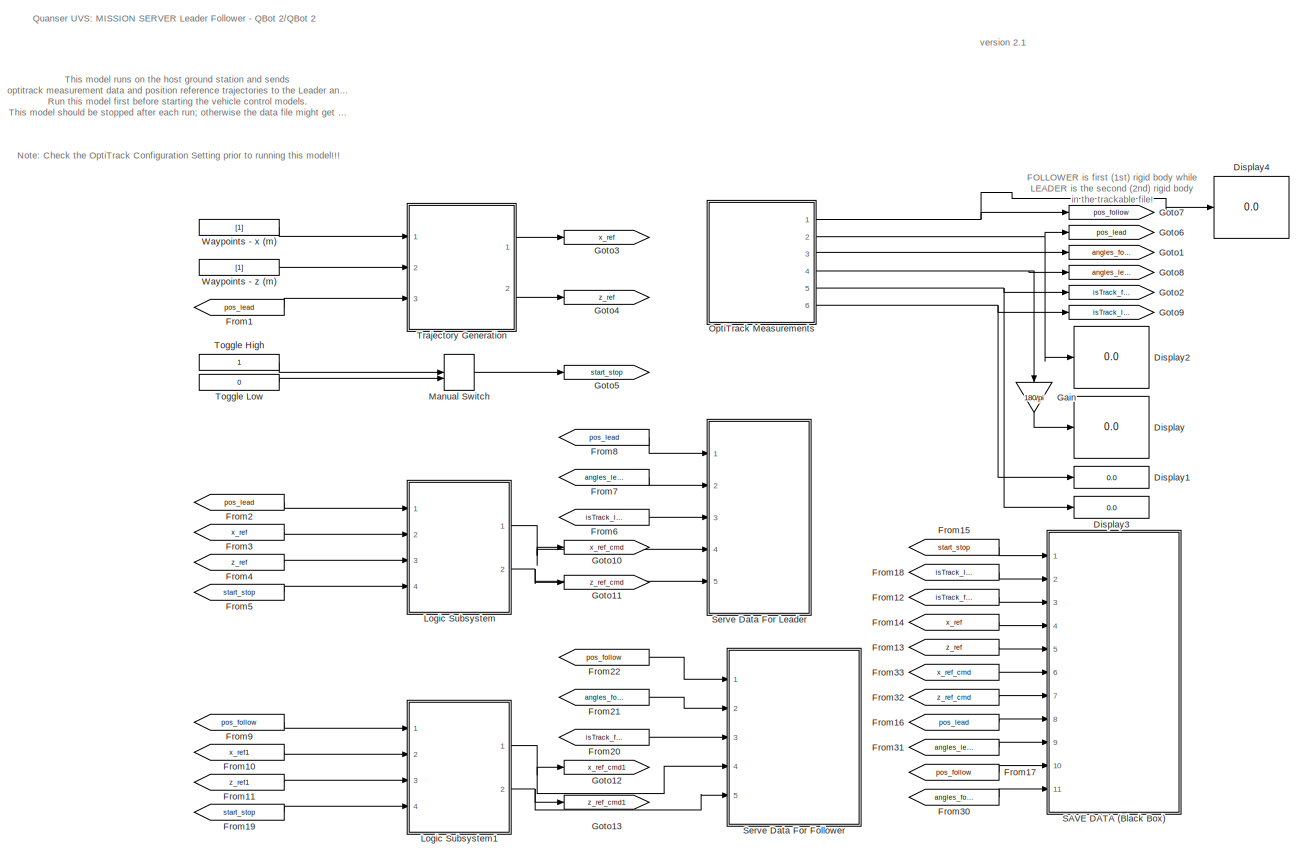
[diagram: root canvas - part 1/2, most of the canvas]
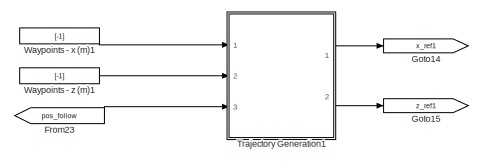
[diagram: root canvas - part 2/2, bottom center region]
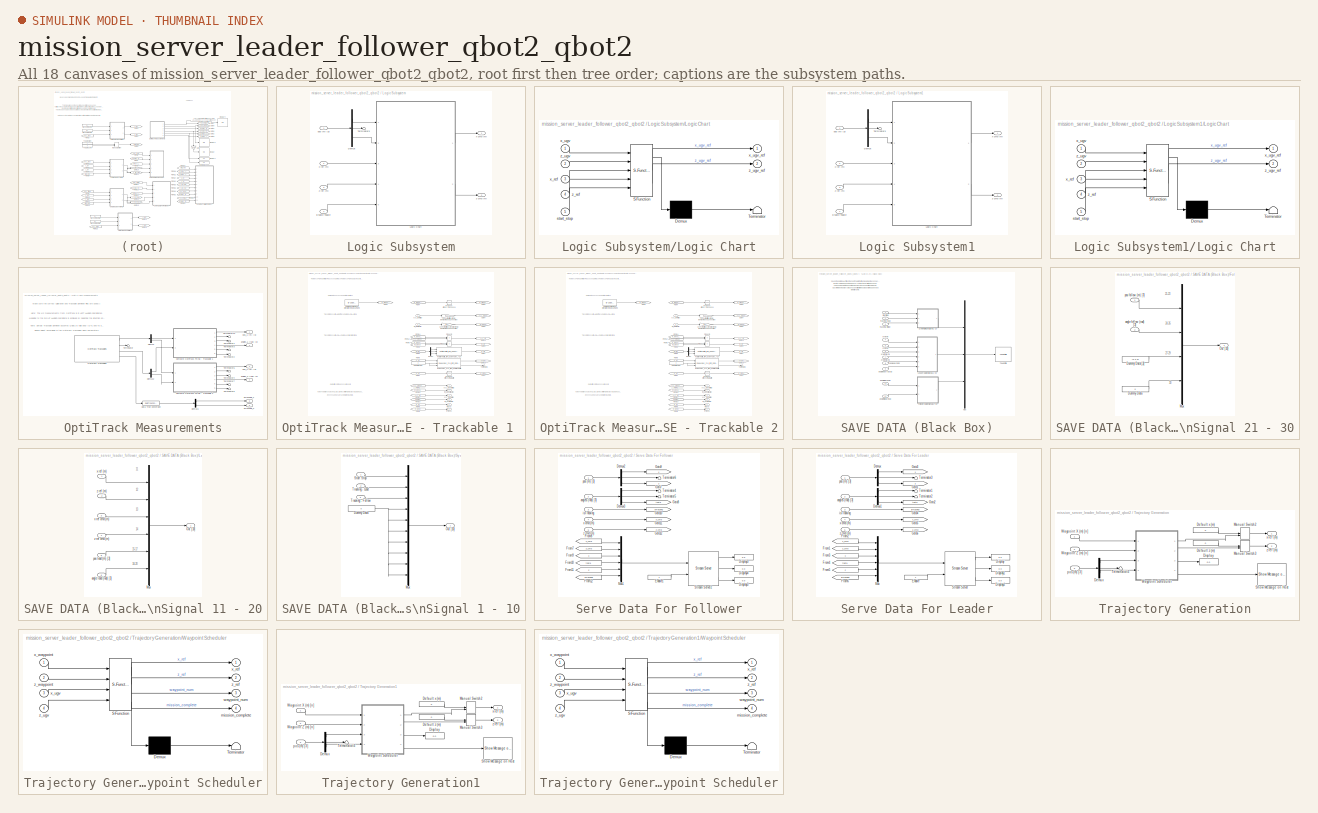
[diagram: thumbnail index - all 18 canvases of the model, root first then tree order]
MODEL mission_server_leader_follower_qbot2_qbot2
KIND model
BLOCK [Display] Display
  Decimation = 100
  Ports = [1]
  SID = 119
BLOCK [Display] Display1
  Decimation = 100
  Ports = [1]
  SID = 121
BLOCK [Display] Display2
  Decimation = 100
  Ports = [1]
  SID = 122
BLOCK [Display] Display3
  Decimation = 100
  Ports = [1]
  SID = 159
BLOCK [Display] Display4
  Decimation = 100
  Ports = [1]
  SID = 332
BLOCK [From] From1
  GotoTag = pos_lead
  SID = 62
BLOCK [From] From10
  GotoTag = x_ref1
  SID = 419
BLOCK [From] From11
  GotoTag = z_ref1
  SID = 420
BLOCK [From] From12
  GotoTag = isTrack_follow
  SID = 269
BLOCK [From] From13
  GotoTag = z_ref
  SID = 270
BLOCK [From] From14
  GotoTag = x_ref
  SID = 271
BLOCK [From] From15
  GotoTag = start_stop
  SID = 276
BLOCK [From] From16
  GotoTag = pos_lead
  SID = 277
BLOCK [From] From17
  GotoTag = pos_follow
  SID = 278
BLOCK [From] From18
  GotoTag = isTrack_lead
  SID = 279
BLOCK [From] From19
  GotoTag = start_stop
  SID = 421
BLOCK [From] From2
  GotoTag = pos_lead
  SID = 77
BLOCK [From] From20
  GotoTag = isTrack_follow
  SID = 422
BLOCK [From] From21
  GotoTag = angles_follow
  SID = 423
BLOCK [From] From22
  GotoTag = pos_follow
  SID = 424
BLOCK [From] From23
  GotoTag = pos_follow
  SID = 437
BLOCK [From] From3
  GotoTag = x_ref
  SID = 78
BLOCK [From] From30
  GotoTag = angles_follow
  SID = 272
BLOCK [From] From31
  GotoTag = angles_lead
  SID = 273
BLOCK [From] From32
  GotoTag = z_ref_cmd
  SID = 274
BLOCK [From] From33
  GotoTag = x_ref_cmd
  SID = 275
BLOCK [From] From4
  GotoTag = z_ref
  SID = 79
BLOCK [From] From5
  GotoTag = start_stop
  SID = 80
BLOCK [From] From6
  GotoTag = isTrack_lead
  SID = 90
BLOCK [From] From7
  GotoTag = angles_lead
  SID = 91
BLOCK [From] From8
  GotoTag = pos_lead
  SID = 92
BLOCK [From] From9
  GotoTag = pos_follow
  SID = 418
BLOCK [Gain] Gain
  Gain = 180/pi
  OutDataTypeStr = Inherit: Inherit via internal rule
  ParamDataTypeStr = Inherit: Inherit via internal rule
  SID = 123
  SaturateOnIntegerOverflow = off
BLOCK [Goto] Goto1
  GotoTag = angles_follow
  SID = 46
BLOCK [Goto] Goto10
  GotoTag = x_ref_cmd
  SID = 328
BLOCK [Goto] Goto11
  GotoTag = z_ref_cmd
  SID = 329
BLOCK [Goto] Goto12
  GotoTag = x_ref_cmd1
  SID = 425
BLOCK [Goto] Goto13
  GotoTag = z_ref_cmd1
  SID = 426
BLOCK [Goto] Goto14
  GotoTag = x_ref1
  SID = 438
BLOCK [Goto] Goto15
  GotoTag = z_ref1
  SID = 439
BLOCK [Goto] Goto2
  GotoTag = isTrack_follow
  SID = 47
BLOCK [Goto] Goto3
  GotoTag = x_ref
  SID = 75
BLOCK [Goto] Goto4
  GotoTag = z_ref
  SID = 76
BLOCK [Goto] Goto5
  GotoTag = start_stop
  SID = 118
BLOCK [Goto] Goto6
  GotoTag = pos_lead
  SID = 124
BLOCK [Goto] Goto7
  GotoTag = pos_follow
  SID = 42
BLOCK [Goto] Goto8
  GotoTag = angles_lead
  SID = 125
BLOCK [Goto] Goto9
  GotoTag = isTrack_lead
  SID = 126
BLOCK [SubSystem] Logic Subsystem
  Ports = [4, 2]
  RequestExecContextInheritance = off
  SID = 65
BLOCK [Demux] Logic Subsystem/Demux
  DisplayOption = bar
  Outputs = 3
  Ports = [1, 3]
  SID = 69
BLOCK [Inport] Logic Subsystem/Enable Toggle
  IconDisplay = Port number
  Port = 4
  SID = 73
BLOCK [SubSystem] Logic Subsystem/Logic Chart
  ErrorFcn = Stateflow.Translate.translate
  PermitHierarchicalResolution = ExplicitOnly
  Ports = [5, 2]
  RequestExecContextInheritance = off
  SFBlockType = Chart
  SID = 68
  TreatAsAtomicUnit = on
BLOCK [Demux] Logic Subsystem/Logic Chart/ Demux 
  Outputs = 1
  Ports = [1, 1]
  SID = 68::333
BLOCK [S-Function] Logic Subsystem/Logic Chart/ SFunction 
  EnableBusSupport = on
  FunctionName = sf_sfun
  PortCounts = [5 3]
  Ports = [5, 3]
  SID = 68::332
  Tag = Stateflow S-Function mission_server_leader_follower_qbot2_qbot2 4
BLOCK [Terminator] Logic Subsystem/Logic Chart/ Terminator 
  SID = 68::334
BLOCK [Inport] Logic Subsystem/Logic Chart/start_stop
  IconDisplay = Port number
  Port = 5
  SID = 68::38
BLOCK [Inport] Logic Subsystem/Logic Chart/x_ref
  IconDisplay = Port number
  Port = 3
  SID = 68::31
BLOCK [Inport] Logic Subsystem/Logic Chart/x_ugv
  IconDisplay = Port number
  SID = 68::29
BLOCK [Outport] Logic Subsystem/Logic Chart/x_ugv_ref
  IconDisplay = Port number
  SID = 68::36
BLOCK [Inport] Logic Subsystem/Logic Chart/z_ref
  IconDisplay = Port number
  Port = 4
  SID = 68::32
BLOCK [Inport] Logic Subsystem/Logic Chart/z_ugv
  IconDisplay = Port number
  Port = 2
  SID = 68::30
BLOCK [Outport] Logic Subsystem/Logic Chart/z_ugv_ref
  IconDisplay = Port number
  Port = 2
  SID = 68::37
BLOCK [Terminator] Logic Subsystem/Terminator3
  SID = 70
BLOCK [Inport] Logic Subsystem/pos (m) [3]
  IconDisplay = Port number
  SID = 66
BLOCK [Outport] Logic Subsystem/x cmd (m)
  IconDisplay = Port number
  SID = 67
BLOCK [Inport] Logic Subsystem/x ref (m)
  IconDisplay = Port number
  Port = 2
  SID = 71
BLOCK [Outport] Logic Subsystem/z cmd (m)
  IconDisplay = Port number
  Port = 2
  SID = 74
BLOCK [Inport] Logic Subsystem/z ref (m)
  IconDisplay = Port number
  Port = 3
  SID = 72
BLOCK [SubSystem] Logic Subsystem1
  Ports = [4, 2]
  RequestExecContextInheritance = off
  SID = 427
BLOCK [Demux] Logic Subsystem1/Demux
  DisplayOption = bar
  Outputs = 3
  Ports = [1, 3]
  SID = 432
BLOCK [Inport] Logic Subsystem1/Enable Toggle
  IconDisplay = Port number
  Port = 4
  SID = 431
BLOCK [SubSystem] Logic Subsystem1/Logic Chart
  ErrorFcn = Stateflow.Translate.translate
  PermitHierarchicalResolution = ExplicitOnly
  Ports = [5, 2]
  RequestExecContextInheritance = off
  SFBlockType = Chart
  SID = 433
  TreatAsAtomicUnit = on
BLOCK [Demux] Logic Subsystem1/Logic Chart/ Demux 
  Outputs = 1
  Ports = [1, 1]
  SID = 433::333
BLOCK [S-Function] Logic Subsystem1/Logic Chart/ SFunction 
  EnableBusSupport = on
  FunctionName = sf_sfun
  PortCounts = [5 3]
  Ports = [5, 3]
  SID = 433::332
  Tag = Stateflow S-Function mission_server_leader_follower_qbot2_qbot2 1
BLOCK [Terminator] Logic Subsystem1/Logic Chart/ Terminator 
  SID = 433::334
BLOCK [Inport] Logic Subsystem1/Logic Chart/start_stop
  IconDisplay = Port number
  Port = 5
  SID = 433::38
BLOCK [Inport] Logic Subsystem1/Logic Chart/x_ref
  IconDisplay = Port number
  Port = 3
  SID = 433::31
BLOCK [Inport] Logic Subsystem1/Logic Chart/x_ugv
  IconDisplay = Port number
  SID = 433::29
BLOCK [Outport] Logic Subsystem1/Logic Chart/x_ugv_ref
  IconDisplay = Port number
  SID = 433::36
BLOCK [Inport] Logic Subsystem1/Logic Chart/z_ref
  IconDisplay = Port number
  Port = 4
  SID = 433::32
BLOCK [Inport] Logic Subsystem1/Logic Chart/z_ugv
  IconDisplay = Port number
  Port = 2
  SID = 433::30
BLOCK [Outport] Logic Subsystem1/Logic Chart/z_ugv_ref
  IconDisplay = Port number
  Port = 2
  SID = 433::37
BLOCK [Terminator] Logic Subsystem1/Terminator3
  SID = 434
BLOCK [Inport] Logic Subsystem1/pos (m) [3]
  IconDisplay = Port number
  SID = 428
BLOCK [Outport] Logic Subsystem1/x cmd (m)
  IconDisplay = Port number
  SID = 435
BLOCK [Inport] Logic Subsystem1/x ref (m)
  IconDisplay = Port number
  Port = 2
  SID = 429
BLOCK [Outport] Logic Subsystem1/z cmd (m)
  IconDisplay = Port number
  Port = 2
  SID = 436
BLOCK [Inport] Logic Subsystem1/z ref (m)
  IconDisplay = Port number
  Port = 3
  SID = 430
BLOCK [ManualSwitch] Manual Switch
  CurrentSetting = 0
  SID = 115
BLOCK [SubSystem] OptiTrack Measurements
  Ports = [0, 6]
  RequestExecContextInheritance = off
  SID = 13
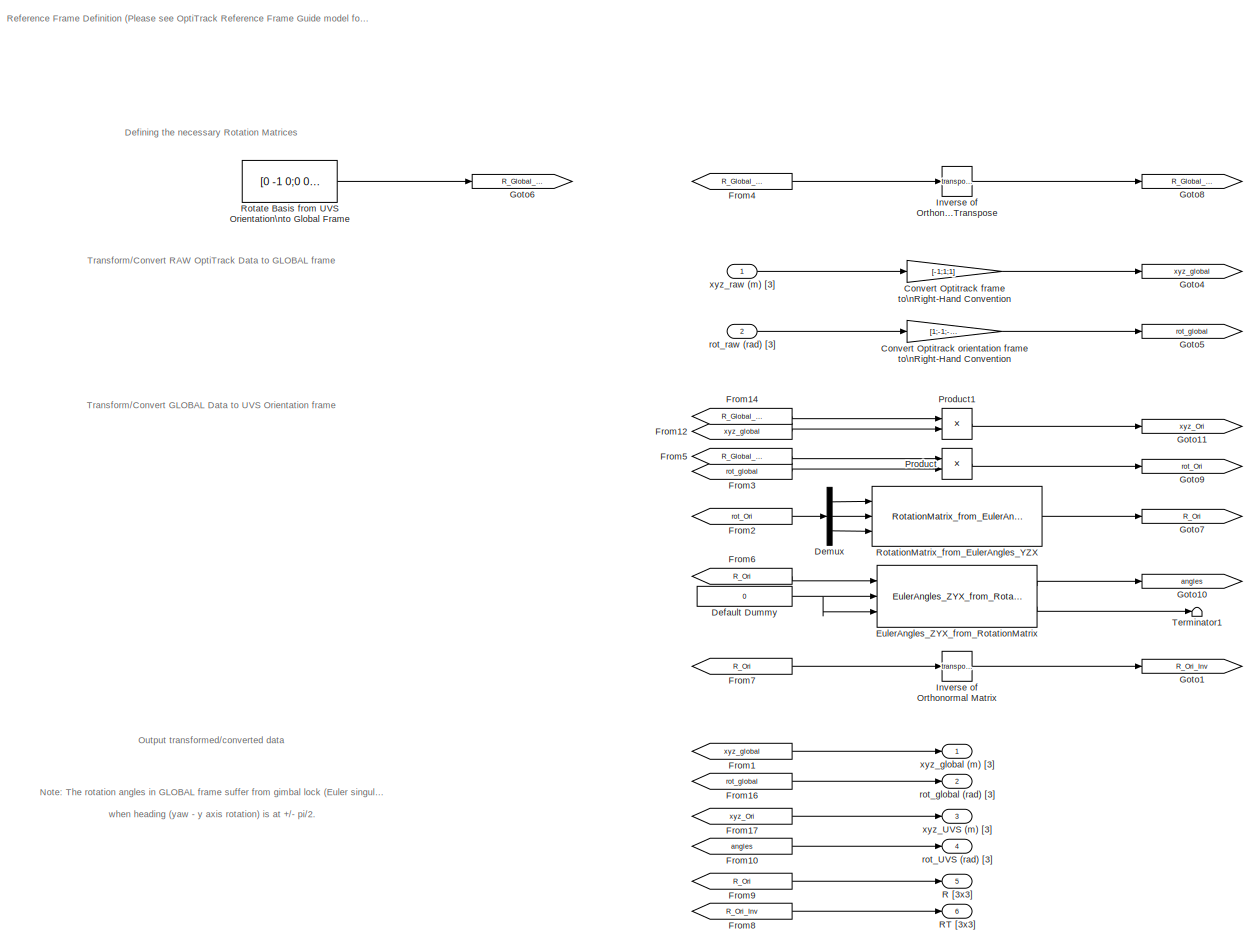
[diagram: OptiTrack Measurements/Compute OptiTrack POSE - Trackable 1  - part 1/1, most of the canvas]
BLOCK [SubSystem] OptiTrack Measurements/Compute OptiTrack POSE - Trackable 1 
  Ports = [2, 6]
  RequestExecContextInheritance = off
  SID = 161
BLOCK [Gain] OptiTrack Measurements/Compute OptiTrack POSE - Trackable 1 /Convert Optitrack frame to\nRight-Hand Convention
  Gain = [-1;1;1]
  OutDataTypeStr = Inherit: Inherit via internal rule
  ParamDataTypeStr = Inherit: Inherit via internal rule
  SID = 164
  SaturateOnIntegerOverflow = off
BLOCK [Gain] OptiTrack Measurements/Compute OptiTrack POSE - Trackable 1 /Convert Optitrack orientation frame to\nRight-Hand Convention
  Gain = [1;-1;-1]
  OutDataTypeStr = Inherit: Inherit via internal rule
  ParamDataTypeStr = Inherit: Inherit via internal rule
  SID = 165
  SaturateOnIntegerOverflow = off
BLOCK [Constant] OptiTrack Measurements/Compute OptiTrack POSE - Trackable 1 /Default Dummy
  SID = 166
  Value = 0
BLOCK [Demux] OptiTrack Measurements/Compute OptiTrack POSE - Trackable 1 /Demux
  DisplayOption = bar
  Outputs = 3
  Ports = [1, 3]
  SID = 167
BLOCK [Reference] OptiTrack Measurements/Compute OptiTrack POSE - Trackable 1 /EulerAngles_ZYX_from_RotationMatrix  REF=Orientation_Library/EulerAngles_ZYX_from_RotationMatrix
  Ports = [3, 2]
  SID = 168
  SourceBlock = Orientation_Library/EulerAngles_ZYX_from_RotationMatrix
  SourceType = SubSystem
BLOCK [From] OptiTrack Measurements/Compute OptiTrack POSE - Trackable 1 /From1
  GotoTag = xyz_global
  SID = 169
BLOCK [From] OptiTrack Measurements/Compute OptiTrack POSE - Trackable 1 /From10
  GotoTag = angles
  SID = 170
BLOCK [From] OptiTrack Measurements/Compute OptiTrack POSE - Trackable 1 /From12
  GotoTag = xyz_global
  SID = 171
BLOCK [From] OptiTrack Measurements/Compute OptiTrack POSE - Trackable 1 /From14
  GotoTag = R_Global_Ori_Inv
  SID = 172
BLOCK [From] OptiTrack Measurements/Compute OptiTrack POSE - Trackable 1 /From16
  GotoTag = rot_global
  SID = 173
BLOCK [From] OptiTrack Measurements/Compute OptiTrack POSE - Trackable 1 /From17
  GotoTag = xyz_Ori
  SID = 174
BLOCK [From] OptiTrack Measurements/Compute OptiTrack POSE - Trackable 1 /From2
  GotoTag = rot_Ori
  SID = 175
BLOCK [From] OptiTrack Measurements/Compute OptiTrack POSE - Trackable 1 /From3
  GotoTag = rot_global
  SID = 176
BLOCK [From] OptiTrack Measurements/Compute OptiTrack POSE - Trackable 1 /From4
  GotoTag = R_Global_Ori
  SID = 177
BLOCK [From] OptiTrack Measurements/Compute OptiTrack POSE - Trackable 1 /From5
  GotoTag = R_Global_Ori_Inv
  SID = 178
BLOCK [From] OptiTrack Measurements/Compute OptiTrack POSE - Trackable 1 /From6
  GotoTag = R_Ori
  SID = 179
BLOCK [From] OptiTrack Measurements/Compute OptiTrack POSE - Trackable 1 /From7
  GotoTag = R_Ori
  SID = 180
BLOCK [From] OptiTrack Measurements/Compute OptiTrack POSE - Trackable 1 /From8
  GotoTag = R_Ori_Inv
  SID = 181
BLOCK [From] OptiTrack Measurements/Compute OptiTrack POSE - Trackable 1 /From9
  GotoTag = R_Ori
  SID = 182
BLOCK [Goto] OptiTrack Measurements/Compute OptiTrack POSE - Trackable 1 /Goto1
  GotoTag = R_Ori_Inv
  SID = 183
BLOCK [Goto] OptiTrack Measurements/Compute OptiTrack POSE - Trackable 1 /Goto10
  GotoTag = angles
  SID = 184
BLOCK [Goto] OptiTrack Measurements/Compute OptiTrack POSE - Trackable 1 /Goto11
  GotoTag = xyz_Ori
  SID = 185
BLOCK [Goto] OptiTrack Measurements/Compute OptiTrack POSE - Trackable 1 /Goto4
  GotoTag = xyz_global
  SID = 186
BLOCK [Goto] OptiTrack Measurements/Compute OptiTrack POSE - Trackable 1 /Goto5
  GotoTag = rot_global
  SID = 187
BLOCK [Goto] OptiTrack Measurements/Compute OptiTrack POSE - Trackable 1 /Goto6
  GotoTag = R_Global_Ori
  SID = 188
BLOCK [Goto] OptiTrack Measurements/Compute OptiTrack POSE - Trackable 1 /Goto7
  GotoTag = R_Ori
  SID = 189
BLOCK [Goto] OptiTrack Measurements/Compute OptiTrack POSE - Trackable 1 /Goto8
  GotoTag = R_Global_Ori_Inv
  SID = 190
BLOCK [Goto] OptiTrack Measurements/Compute OptiTrack POSE - Trackable 1 /Goto9
  GotoTag = rot_Ori
  SID = 191
BLOCK [Math] OptiTrack Measurements/Compute OptiTrack POSE - Trackable 1 /Inverse of Orthonormal Matrix
  Operator = transpose
  Ports = [1, 1]
  SID = 192
BLOCK [Math] OptiTrack Measurements/Compute OptiTrack POSE - Trackable 1 /Inverse of Orthonormal Matrix\nis its Transpose
  Operator = transpose
  Ports = [1, 1]
  SID = 193
BLOCK [Product] OptiTrack Measurements/Compute OptiTrack POSE - Trackable 1 /Product
  InputSameDT = off
  Multiplication = Matrix(*)
  OutDataTypeStr = Inherit: Inherit via internal rule
  Ports = [2, 1]
  RndMeth = Floor
  SID = 194
  SaturateOnIntegerOverflow = off
BLOCK [Product] OptiTrack Measurements/Compute OptiTrack POSE - Trackable 1 /Product1
  InputSameDT = off
  Multiplication = Matrix(*)
  OutDataTypeStr = Inherit: Inherit via internal rule
  Ports = [2, 1]
  RndMeth = Floor
  SID = 195
  SaturateOnIntegerOverflow = off
BLOCK [Outport] OptiTrack Measurements/Compute OptiTrack POSE - Trackable 1 /R [3x3]
  IconDisplay = Port number
  Port = 5
  SID = 203
BLOCK [Outport] OptiTrack Measurements/Compute OptiTrack POSE - Trackable 1 /RT [3x3]
  IconDisplay = Port number
  Port = 6
  SID = 204
BLOCK [Constant] OptiTrack Measurements/Compute OptiTrack POSE - Trackable 1 /Rotate Basis from UVS Orientation\nto Global Frame
  SID = 196
  Value = [0 -1 0;0 0 1;-1 0 0]
BLOCK [Reference] OptiTrack Measurements/Compute OptiTrack POSE - Trackable 1 /RotationMatrix_from_EulerAngles_YZX  REF=Orientation_Library/RotationMatrix_from_EulerAngles_YZX
  Ports = [3, 1]
  SID = 197
  SourceBlock = Orientation_Library/RotationMatrix_from_EulerAngles_YZX
  SourceType = SubSystem
BLOCK [Terminator] OptiTrack Measurements/Compute OptiTrack POSE - Trackable 1 /Terminator1
  SID = 198
BLOCK [Outport] OptiTrack Measurements/Compute OptiTrack POSE - Trackable 1 /rot_UVS (rad) [3]
  IconDisplay = Port number
  Port = 4
  SID = 202
BLOCK [Outport] OptiTrack Measurements/Compute OptiTrack POSE - Trackable 1 /rot_global (rad) [3]
  IconDisplay = Port number
  Port = 2
  SID = 200
BLOCK [Inport] OptiTrack Measurements/Compute OptiTrack POSE - Trackable 1 /rot_raw (rad) [3]
  IconDisplay = Port number
  Port = 2
  SID = 163
BLOCK [Outport] OptiTrack Measurements/Compute OptiTrack POSE - Trackable 1 /xyz_UVS (m) [3]
  IconDisplay = Port number
  Port = 3
  SID = 201
BLOCK [Outport] OptiTrack Measurements/Compute OptiTrack POSE - Trackable 1 /xyz_global (m) [3]
  IconDisplay = Port number
  SID = 199
BLOCK [Inport] OptiTrack Measurements/Compute OptiTrack POSE - Trackable 1 /xyz_raw (m) [3]
  IconDisplay = Port number
  SID = 162
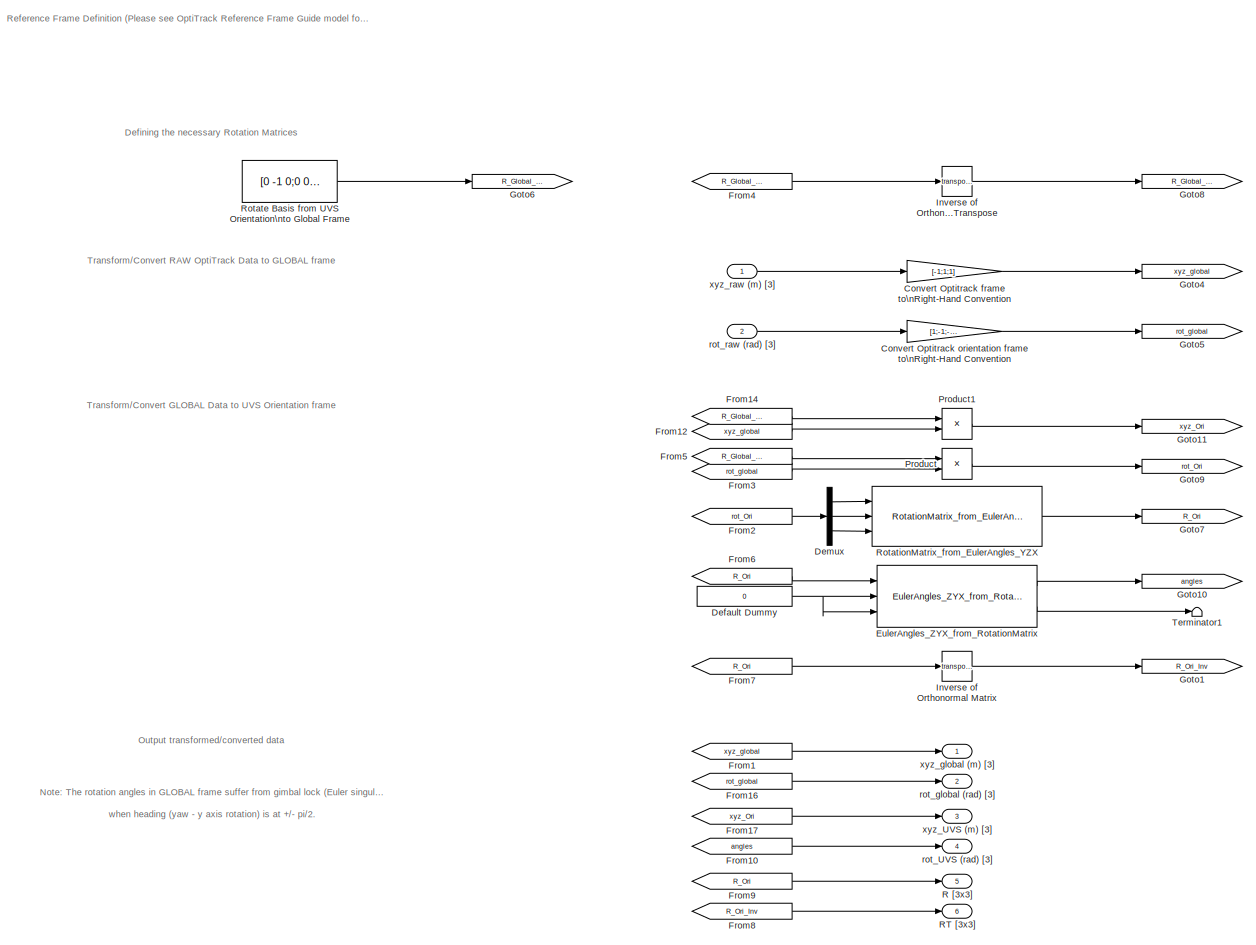
[diagram: OptiTrack Measurements/Compute OptiTrack POSE - Trackable 2 - part 1/1, most of the canvas]
BLOCK [SubSystem] OptiTrack Measurements/Compute OptiTrack POSE - Trackable 2
  Ports = [2, 6]
  RequestExecContextInheritance = off
  SID = 211
BLOCK [Gain] OptiTrack Measurements/Compute OptiTrack POSE - Trackable 2/Convert Optitrack frame to\nRight-Hand Convention
  Gain = [-1;1;1]
  OutDataTypeStr = Inherit: Inherit via internal rule
  ParamDataTypeStr = Inherit: Inherit via internal rule
  SID = 214
  SaturateOnIntegerOverflow = off
BLOCK [Gain] OptiTrack Measurements/Compute OptiTrack POSE - Trackable 2/Convert Optitrack orientation frame to\nRight-Hand Convention
  Gain = [1;-1;-1]
  OutDataTypeStr = Inherit: Inherit via internal rule
  ParamDataTypeStr = Inherit: Inherit via internal rule
  SID = 215
  SaturateOnIntegerOverflow = off
BLOCK [Constant] OptiTrack Measurements/Compute OptiTrack POSE - Trackable 2/Default Dummy
  SID = 216
  Value = 0
BLOCK [Demux] OptiTrack Measurements/Compute OptiTrack POSE - Trackable 2/Demux
  DisplayOption = bar
  Outputs = 3
  Ports = [1, 3]
  SID = 217
BLOCK [Reference] OptiTrack Measurements/Compute OptiTrack POSE - Trackable 2/EulerAngles_ZYX_from_RotationMatrix  REF=Orientation_Library/EulerAngles_ZYX_from_RotationMatrix
  Ports = [3, 2]
  SID = 218
  SourceBlock = Orientation_Library/EulerAngles_ZYX_from_RotationMatrix
  SourceType = SubSystem
BLOCK [From] OptiTrack Measurements/Compute OptiTrack POSE - Trackable 2/From1
  GotoTag = xyz_global
  SID = 219
BLOCK [From] OptiTrack Measurements/Compute OptiTrack POSE - Trackable 2/From10
  GotoTag = angles
  SID = 220
BLOCK [From] OptiTrack Measurements/Compute OptiTrack POSE - Trackable 2/From12
  GotoTag = xyz_global
  SID = 221
BLOCK [From] OptiTrack Measurements/Compute OptiTrack POSE - Trackable 2/From14
  GotoTag = R_Global_Ori_Inv
  SID = 222
BLOCK [From] OptiTrack Measurements/Compute OptiTrack POSE - Trackable 2/From16
  GotoTag = rot_global
  SID = 223
BLOCK [From] OptiTrack Measurements/Compute OptiTrack POSE - Trackable 2/From17
  GotoTag = xyz_Ori
  SID = 224
BLOCK [From] OptiTrack Measurements/Compute OptiTrack POSE - Trackable 2/From2
  GotoTag = rot_Ori
  SID = 225
BLOCK [From] OptiTrack Measurements/Compute OptiTrack POSE - Trackable 2/From3
  GotoTag = rot_global
  SID = 226
BLOCK [From] OptiTrack Measurements/Compute OptiTrack POSE - Trackable 2/From4
  GotoTag = R_Global_Ori
  SID = 227
BLOCK [From] OptiTrack Measurements/Compute OptiTrack POSE - Trackable 2/From5
  GotoTag = R_Global_Ori_Inv
  SID = 228
BLOCK [From] OptiTrack Measurements/Compute OptiTrack POSE - Trackable 2/From6
  GotoTag = R_Ori
  SID = 229
BLOCK [From] OptiTrack Measurements/Compute OptiTrack POSE - Trackable 2/From7
  GotoTag = R_Ori
  SID = 230
BLOCK [From] OptiTrack Measurements/Compute OptiTrack POSE - Trackable 2/From8
  GotoTag = R_Ori_Inv
  SID = 231
BLOCK [From] OptiTrack Measurements/Compute OptiTrack POSE - Trackable 2/From9
  GotoTag = R_Ori
  SID = 232
BLOCK [Goto] OptiTrack Measurements/Compute OptiTrack POSE - Trackable 2/Goto1
  GotoTag = R_Ori_Inv
  SID = 233
BLOCK [Goto] OptiTrack Measurements/Compute OptiTrack POSE - Trackable 2/Goto10
  GotoTag = angles
  SID = 234
BLOCK [Goto] OptiTrack Measurements/Compute OptiTrack POSE - Trackable 2/Goto11
  GotoTag = xyz_Ori
  SID = 235
BLOCK [Goto] OptiTrack Measurements/Compute OptiTrack POSE - Trackable 2/Goto4
  GotoTag = xyz_global
  SID = 236
BLOCK [Goto] OptiTrack Measurements/Compute OptiTrack POSE - Trackable 2/Goto5
  GotoTag = rot_global
  SID = 237
BLOCK [Goto] OptiTrack Measurements/Compute OptiTrack POSE - Trackable 2/Goto6
  GotoTag = R_Global_Ori
  SID = 238
BLOCK [Goto] OptiTrack Measurements/Compute OptiTrack POSE - Trackable 2/Goto7
  GotoTag = R_Ori
  SID = 239
BLOCK [Goto] OptiTrack Measurements/Compute OptiTrack POSE - Trackable 2/Goto8
  GotoTag = R_Global_Ori_Inv
  SID = 240
BLOCK [Goto] OptiTrack Measurements/Compute OptiTrack POSE - Trackable 2/Goto9
  GotoTag = rot_Ori
  SID = 241
BLOCK [Math] OptiTrack Measurements/Compute OptiTrack POSE - Trackable 2/Inverse of Orthonormal Matrix
  Operator = transpose
  Ports = [1, 1]
  SID = 242
BLOCK [Math] OptiTrack Measurements/Compute OptiTrack POSE - Trackable 2/Inverse of Orthonormal Matrix\nis its Transpose
  Operator = transpose
  Ports = [1, 1]
  SID = 243
BLOCK [Product] OptiTrack Measurements/Compute OptiTrack POSE - Trackable 2/Product
  InputSameDT = off
  Multiplication = Matrix(*)
  OutDataTypeStr = Inherit: Inherit via internal rule
  Ports = [2, 1]
  RndMeth = Floor
  SID = 244
  SaturateOnIntegerOverflow = off
BLOCK [Product] OptiTrack Measurements/Compute OptiTrack POSE - Trackable 2/Product1
  InputSameDT = off
  Multiplication = Matrix(*)
  OutDataTypeStr = Inherit: Inherit via internal rule
  Ports = [2, 1]
  RndMeth = Floor
  SID = 245
  SaturateOnIntegerOverflow = off
BLOCK [Outport] OptiTrack Measurements/Compute OptiTrack POSE - Trackable 2/R [3x3]
  IconDisplay = Port number
  Port = 5
  SID = 253
BLOCK [Outport] OptiTrack Measurements/Compute OptiTrack POSE - Trackable 2/RT [3x3]
  IconDisplay = Port number
  Port = 6
  SID = 254
BLOCK [Constant] OptiTrack Measurements/Compute OptiTrack POSE - Trackable 2/Rotate Basis from UVS Orientation\nto Global Frame
  SID = 246
  Value = [0 -1 0;0 0 1;-1 0 0]
BLOCK [Reference] OptiTrack Measurements/Compute OptiTrack POSE - Trackable 2/RotationMatrix_from_EulerAngles_YZX  REF=Orientation_Library/RotationMatrix_from_EulerAngles_YZX
  Ports = [3, 1]
  SID = 247
  SourceBlock = Orientation_Library/RotationMatrix_from_EulerAngles_YZX
  SourceType = SubSystem
BLOCK [Terminator] OptiTrack Measurements/Compute OptiTrack POSE - Trackable 2/Terminator1
  SID = 248
BLOCK [Outport] OptiTrack Measurements/Compute OptiTrack POSE - Trackable 2/rot_UVS (rad) [3]
  IconDisplay = Port number
  Port = 4
  SID = 252
BLOCK [Outport] OptiTrack Measurements/Compute OptiTrack POSE - Trackable 2/rot_global (rad) [3]
  IconDisplay = Port number
  Port = 2
  SID = 250
BLOCK [Inport] OptiTrack Measurements/Compute OptiTrack POSE - Trackable 2/rot_raw (rad) [3]
  IconDisplay = Port number
  Port = 2
  SID = 213
BLOCK [Outport] OptiTrack Measurements/Compute OptiTrack POSE - Trackable 2/xyz_UVS (m) [3]
  IconDisplay = Port number
  Port = 3
  SID = 251
BLOCK [Outport] OptiTrack Measurements/Compute OptiTrack POSE - Trackable 2/xyz_global (m) [3]
  IconDisplay = Port number
  SID = 249
BLOCK [Inport] OptiTrack Measurements/Compute OptiTrack POSE - Trackable 2/xyz_raw (m) [3]
  IconDisplay = Port number
  SID = 212
BLOCK [DataTypeConversion] OptiTrack Measurements/Data Type Conversion
  RndMeth = Floor
  SID = 29
  SaturateOnIntegerOverflow = off
BLOCK [Demux] OptiTrack Measurements/Demux
  DisplayOption = bar
  Outputs = 2
  Ports = [1, 2]
  SID = 20
BLOCK [Demux] OptiTrack Measurements/Demux1
  DisplayOption = bar
  Outputs = 2
  Ports = [1, 2]
  SID = 28
BLOCK [Demux] OptiTrack Measurements/Demux2
  DisplayOption = bar
  Outputs = 2
  Ports = [1, 2]
  SID = 261
BLOCK [Reference] OptiTrack Measurements/OptiTrack Trackables  REF=quarc_library/Devices/Third-Party/NaturalPoint/OptiTrack/OptiTrack Trackables
  Ports = [0, 4]
  SID = 17
  SourceBlock = quarc_library/Devices/Third-Party/NaturalPoint/OptiTrack/OptiTrack Trackables
  SourceType = OptiTrack Rigid Body Position
  calibration_file = <userpath><path> mm) 2017-05-16 6.48pm.cal
  rigid_body_file = <userpath><path>
  rigid_body_ids = [1 2]
  sample_time = qc_get_step_size
BLOCK [Terminator] OptiTrack Measurements/Terminator
  SID = 24
BLOCK [Terminator] OptiTrack Measurements/Terminator1
  SID = 41
BLOCK [Terminator] OptiTrack Measurements/Terminator12
  SID = 37
BLOCK [Terminator] OptiTrack Measurements/Terminator2
  SID = 262
BLOCK [Terminator] OptiTrack Measurements/Terminator3
  SID = 263
BLOCK [Terminator] OptiTrack Measurements/Terminator4
  SID = 264
BLOCK [Terminator] OptiTrack Measurements/Terminator5
  SID = 265
BLOCK [Terminator] OptiTrack Measurements/Terminator6
  SID = 266
BLOCK [Terminator] OptiTrack Measurements/Terminator7
  SID = 267
BLOCK [Outport] OptiTrack Measurements/angles_1 (rad) [3]
  IconDisplay = Port number
  Port = 3
  SID = 39
BLOCK [Outport] OptiTrack Measurements/angles_2 (rad) [3]
  IconDisplay = Port number
  Port = 4
  SID = 40
BLOCK [Outport] OptiTrack Measurements/isTracking_1
  IconDisplay = Port number
  Port = 5
  SID = 30
BLOCK [Outport] OptiTrack Measurements/isTracking_2
  IconDisplay = Port number
  Port = 6
  SID = 31
BLOCK [Outport] OptiTrack Measurements/pos_1 (m) [3]
  IconDisplay = Port number
  SID = 15
BLOCK [Outport] OptiTrack Measurements/pos_2 (m) [3]
  IconDisplay = Port number
  Port = 2
  SID = 23
BLOCK [SubSystem] SAVE DATA (Black Box)
  Ports = [11]
  RequestExecContextInheritance = off
  SID = 280
BLOCK [SubSystem] SAVE DATA (Black Box)/Follower Data\nSignal 21 - 30
  Ports = [2, 1]
  RequestExecContextInheritance = off
  SID = 292
BLOCK [Constant] SAVE DATA (Black Box)/Follower Data\nSignal 21 - 30/Dummy Data
  SID = 295
  Value = 0
BLOCK [Constant] SAVE DATA (Black Box)/Follower Data\nSignal 21 - 30/Dummy Data [3]
  SID = 296
  Value = [0 0 0]
BLOCK [Mux] SAVE DATA (Black Box)/Follower Data\nSignal 21 - 30/Mux
  DisplayOption = bar
  Inputs = [3 3 3 1]
  Ports = [4, 1]
  SID = 297
BLOCK [Outport] SAVE DATA (Black Box)/Follower Data\nSignal 21 - 30/Out [10]
  IconDisplay = Port number
  SID = 298
BLOCK [Inport] SAVE DATA (Black Box)/Follower Data\nSignal 21 - 30/angle follow (rad) [3]
  IconDisplay = Port number
  Port = 2
  SID = 294
BLOCK [Inport] SAVE DATA (Black Box)/Follower Data\nSignal 21 - 30/pos follow (m) [3]
  IconDisplay = Port number
  SID = 293
BLOCK [SubSystem] SAVE DATA (Black Box)/Leader Data\nSignal 11 - 20
  Ports = [6, 1]
  RequestExecContextInheritance = off
  SID = 303
BLOCK [Mux] SAVE DATA (Black Box)/Leader Data\nSignal 11 - 20/Mux
  DisplayOption = bar
  Inputs = [1 1 1 1 3 3]
  Ports = [6, 1]
  SID = 310
BLOCK [Outport] SAVE DATA (Black Box)/Leader Data\nSignal 11 - 20/Out [10]
  IconDisplay = Port number
  SID = 311
BLOCK [Inport] SAVE DATA (Black Box)/Leader Data\nSignal 11 - 20/angle lead (rad) [3]
  IconDisplay = Port number
  Port = 6
  SID = 309
BLOCK [Inport] SAVE DATA (Black Box)/Leader Data\nSignal 11 - 20/pos lead (m) [3]
  IconDisplay = Port number
  Port = 5
  SID = 308
BLOCK [Inport] SAVE DATA (Black Box)/Leader Data\nSignal 11 - 20/x ref (m)
  IconDisplay = Port number
  SID = 304
BLOCK [Inport] SAVE DATA (Black Box)/Leader Data\nSignal 11 - 20/x ref cmd (m)
  IconDisplay = Port number
  Port = 3
  SID = 306
BLOCK [Inport] SAVE DATA (Black Box)/Leader Data\nSignal 11 - 20/z ref (m)
  IconDisplay = Port number
  Port = 2
  SID = 305
BLOCK [Inport] SAVE DATA (Black Box)/Leader Data\nSignal 11 - 20/z ref cmd (m)
  IconDisplay = Port number
  Port = 4
  SID = 307
BLOCK [Mux] SAVE DATA (Black Box)/Mux
  DisplayOption = bar
  Inputs = 3
  Ports = [3, 1]
  SID = 318
BLOCK [Inport] SAVE DATA (Black Box)/Start Stop
  IconDisplay = Port number
  SID = 281
BLOCK [SubSystem] SAVE DATA (Black Box)/System Status\nSignal 1 - 10
  Ports = [3, 1]
  RequestExecContextInheritance = off
  SID = 319
BLOCK [Constant] SAVE DATA (Black Box)/System Status\nSignal 1 - 10/Dummy Data
  SID = 323
  Value = 0
BLOCK [Mux] SAVE DATA (Black Box)/System Status\nSignal 1 - 10/Mux
  DisplayOption = bar
  Inputs = 10
  Ports = [10, 1]
  SID = 324
BLOCK [Outport] SAVE DATA (Black Box)/System Status\nSignal 1 - 10/Out [10]
  IconDisplay = Port number
  SID = 325
BLOCK [Inport] SAVE DATA (Black Box)/System Status\nSignal 1 - 10/Start Stop
  IconDisplay = Port number
  SID = 320
BLOCK [Inport] SAVE DATA (Black Box)/System Status\nSignal 1 - 10/Tracking - Follow
  IconDisplay = Port number
  Port = 3
  SID = 322
BLOCK [Inport] SAVE DATA (Black Box)/System Status\nSignal 1 - 10/Tracking - Lead
  IconDisplay = Port number
  Port = 2
  SID = 321
BLOCK [Reference] SAVE DATA (Black Box)/To Host File  REF=quarc_library/Sinks/To Host/To Host File
  AttributesFormatString = %<final_file_name>
  Ports = [1]
  SID = 326
  SourceBlock = quarc_library/Sinks/To Host/To Host File
  SourceType = To Host File
  append = off
  decimation = 1
  file_format = MAT-file v.4
  file_name = mission_data_%{date}_%{time}.mat
  final_file_name = mission_data_01-Jun-2017_15-11-59.mat
  options = No header or footer
  sample_time = -1
  variable_name = mission_data
BLOCK [Inport] SAVE DATA (Black Box)/angle follow (m) [3]
  IconDisplay = Port number
  Port = 11
  SID = 291
BLOCK [Inport] SAVE DATA (Black Box)/angle lead (rad) [3]
  IconDisplay = Port number
  Port = 9
  SID = 289
BLOCK [Inport] SAVE DATA (Black Box)/pos follow (m) [3]
  IconDisplay = Port number
  Port = 10
  SID = 290
BLOCK [Inport] SAVE DATA (Black Box)/pos lead (m) [3]
  IconDisplay = Port number
  Port = 8
  SID = 288
BLOCK [Inport] SAVE DATA (Black Box)/tracking - follow
  IconDisplay = Port number
  Port = 3
  SID = 283
BLOCK [Inport] SAVE DATA (Black Box)/tracking - lead
  IconDisplay = Port number
  Port = 2
  SID = 282
BLOCK [Inport] SAVE DATA (Black Box)/x ref (m)
  IconDisplay = Port number
  Port = 4
  SID = 284
BLOCK [Inport] SAVE DATA (Black Box)/x ref cmd (m)
  IconDisplay = Port number
  Port = 6
  SID = 286
BLOCK [Inport] SAVE DATA (Black Box)/z ref (m)
  IconDisplay = Port number
  Port = 5
  SID = 285
BLOCK [Inport] SAVE DATA (Black Box)/z ref cmd (m)
  IconDisplay = Port number
  Port = 7
  SID = 287
BLOCK [SubSystem] Serve Data For Follower
  Ports = [5]
  RequestExecContextInheritance = off
  SID = 127
BLOCK [Demux] Serve Data For Follower/Demux2
  DisplayOption = bar
  Outputs = 3
  Ports = [1, 3]
  SID = 395
BLOCK [Demux] Serve Data For Follower/Demux3
  DisplayOption = bar
  Outputs = 3
  Ports = [1, 3]
  SID = 396
BLOCK [Display] Serve Data For Follower/Display3
  Decimation = 100
  Ports = [1]
  SID = 397
BLOCK [Display] Serve Data For Follower/Display4
  Decimation = 100
  Ports = [1]
  SID = 398
BLOCK [Display] Serve Data For Follower/Display5
  Decimation = 100
  Ports = [1]
  SID = 399
BLOCK [Constant] Serve Data For Follower/Enable1
  SID = 400
BLOCK [From] Serve Data For Follower/From10
  GotoTag = theta
  SID = 404
BLOCK [From] Serve Data For Follower/From11
  GotoTag = z
  SID = 405
BLOCK [From] Serve Data For Follower/From12
  GotoTag = isTracking
  SID = 406
BLOCK [From] Serve Data For Follower/From7
  GotoTag = z_cmd
  SID = 401
BLOCK [From] Serve Data For Follower/From8
  GotoTag = x_cmd
  SID = 402
BLOCK [From] Serve Data For Follower/From9
  GotoTag = x
  SID = 403
BLOCK [Goto] Serve Data For Follower/Goto10
  GotoTag = isTracking
  SID = 410
BLOCK [Goto] Serve Data For Follower/Goto11
  GotoTag = x_cmd
  SID = 411
BLOCK [Goto] Serve Data For Follower/Goto12
  GotoTag = z_cmd
  SID = 412
BLOCK [Goto] Serve Data For Follower/Goto7
  GotoTag = z
  SID = 407
BLOCK [Goto] Serve Data For Follower/Goto8
  GotoTag = theta
  SID = 408
BLOCK [Goto] Serve Data For Follower/Goto9
  GotoTag = x
  SID = 409
BLOCK [Mux] Serve Data For Follower/Mux1
  DisplayOption = bar
  Inputs = 6
  Ports = [6, 1]
  SID = 413
BLOCK [Reference] Serve Data For Follower/Stream Server2  REF=quarc_library/Communications/Basic/Stream Server
  AttributesFormatString = \"tcpip://localhost:18005\"
  Ports = [2, 3]
  SID = 361
  SourceBlock = quarc_library/Communications/Basic/Stream Server
  SourceType = Stream Server
  active = off
  apply_uri_to_all_configs = on
  byte_order = little endian (Intel - LSB first)
  data_type = Inherited via back propagation
  default_value = [0]
  implementation = Use non-blocking I/O
  max_dimensions = -1
  optimization = Minimum latency
  receive_buffer_size = 1460
  receive_dimensions = off
  receive_fifo_size = 1000
  receive_options = Do not receive data
  receive_priority = 0
  sample_time = qc_get_step_size
  send_buffer_size = 1460
  send_dimensions = off
  send_fifo_size = 1000
  send_options = Send most recent data
  send_priority = 0
  type_expr = BusObject
  uri = tcpip://localhost:18005
  uri_source = Specify via dialog (do not evaluate)
BLOCK [Terminator] Serve Data For Follower/Terminator4
  SID = 415
BLOCK [Terminator] Serve Data For Follower/Terminator5
  SID = 416
BLOCK [Terminator] Serve Data For Follower/Terminator6
  SID = 417
BLOCK [Inport] Serve Data For Follower/angles (rad) [3]
  IconDisplay = Port number
  Port = 2
  SID = 391
BLOCK [Inport] Serve Data For Follower/isTracking
  IconDisplay = Port number
  Port = 3
  SID = 392
BLOCK [Inport] Serve Data For Follower/pos (m) [3]
  IconDisplay = Port number
  SID = 390
BLOCK [Inport] Serve Data For Follower/x cmd (m)
  IconDisplay = Port number
  Port = 4
  SID = 393
BLOCK [Inport] Serve Data For Follower/z cmd (m)
  IconDisplay = Port number
  Port = 5
  SID = 394
BLOCK [SubSystem] Serve Data For Leader
  Ports = [5]
  RequestExecContextInheritance = off
  SID = 82
BLOCK [Demux] Serve Data For Leader/Demux
  DisplayOption = bar
  Outputs = 3
  Ports = [1, 3]
  SID = 89
BLOCK [Demux] Serve Data For Leader/Demux1
  DisplayOption = bar
  Outputs = 3
  Ports = [1, 3]
  SID = 96
BLOCK [Display] Serve Data For Leader/Display
  Decimation = 100
  Ports = [1]
  SID = 112
BLOCK [Display] Serve Data For Leader/Display1
  Decimation = 100
  Ports = [1]
  SID = 113
BLOCK [Display] Serve Data For Leader/Display2
  Decimation = 100
  Ports = [1]
  SID = 114
BLOCK [Constant] Serve Data For Leader/Enable
  SID = 105
BLOCK [From] Serve Data For Leader/From1
  GotoTag = z_cmd
  SID = 107
BLOCK [From] Serve Data For Leader/From2
  GotoTag = x_cmd
  SID = 104
BLOCK [From] Serve Data For Leader/From3
  GotoTag = x
  SID = 108
BLOCK [From] Serve Data For Leader/From4
  GotoTag = theta
  SID = 109
BLOCK [From] Serve Data For Leader/From5
  GotoTag = z
  SID = 110
BLOCK [From] Serve Data For Leader/From6
  GotoTag = isTracking
  SID = 111
BLOCK [Goto] Serve Data For Leader/Goto1
  GotoTag = z
  SID = 95
BLOCK [Goto] Serve Data For Leader/Goto2
  GotoTag = theta
  SID = 99
BLOCK [Goto] Serve Data For Leader/Goto3
  GotoTag = x
  SID = 93
BLOCK [Goto] Serve Data For Leader/Goto4
  GotoTag = isTracking
  SID = 100
BLOCK [Goto] Serve Data For Leader/Goto5
  GotoTag = x_cmd
  SID = 101
BLOCK [Goto] Serve Data For Leader/Goto6
  GotoTag = z_cmd
  SID = 102
BLOCK [Mux] Serve Data For Leader/Mux
  DisplayOption = bar
  Inputs = 6
  Ports = [6, 1]
  SID = 106
BLOCK [Reference] Serve Data For Leader/Stream Server  REF=quarc_library/Communications/Basic/Stream Server
  AttributesFormatString = \"tcpip://localhost:18006\"
  Ports = [2, 3]
  SID = 103
  SourceBlock = quarc_library/Communications/Basic/Stream Server
  SourceType = Stream Server
  active = off
  apply_uri_to_all_configs = on
  byte_order = little endian (Intel - LSB first)
  data_type = Inherited via back propagation
  default_value = [0]
  implementation = Use non-blocking I/O
  max_dimensions = -1
  optimization = Minimum latency
  receive_buffer_size = 1460
  receive_dimensions = off
  receive_fifo_size = 1000
  receive_options = Do not receive data
  receive_priority = 0
  sample_time = qc_get_step_size
  send_buffer_size = 1460
  send_dimensions = off
  send_fifo_size = 1000
  send_options = Send most recent data
  send_priority = 0
  type_expr = BusObject
  uri = tcpip://localhost:18006
  uri_source = Specify via dialog (do not evaluate)
BLOCK [Terminator] Serve Data For Leader/Terminator1
  SID = 97
BLOCK [Terminator] Serve Data For Leader/Terminator2
  SID = 98
BLOCK [Terminator] Serve Data For Leader/Terminator3
  SID = 94
BLOCK [Inport] Serve Data For Leader/angles (rad) [3]
  IconDisplay = Port number
  Port = 2
  SID = 85
BLOCK [Inport] Serve Data For Leader/isTracking
  IconDisplay = Port number
  Port = 3
  SID = 88
BLOCK [Inport] Serve Data For Leader/pos (m) [3]
  IconDisplay = Port number
  SID = 83
BLOCK [Inport] Serve Data For Leader/x cmd (m)
  IconDisplay = Port number
  Port = 4
  SID = 86
BLOCK [Inport] Serve Data For Leader/z cmd (m)
  IconDisplay = Port number
  Port = 5
  SID = 87
BLOCK [Constant] Toggle High
  SID = 117
BLOCK [Constant] Toggle Low
  SID = 116
  Value = 0
BLOCK [SubSystem] Trajectory Generation
  Ports = [3, 2]
  RequestExecContextInheritance = off
  SID = 48
BLOCK [Constant] Trajectory Generation/Default x (m)
  SID = 59
  Value = 0
BLOCK [Constant] Trajectory Generation/Default z (m)
  SID = 60
  Value = 0
BLOCK [Demux] Trajectory Generation/Demux
  DisplayOption = bar
  Outputs = 3
  Ports = [1, 3]
  SID = 63
BLOCK [Display] Trajectory Generation/Display
  Decimation = 100
  Ports = [1]
  SID = 57
BLOCK [ManualSwitch] Trajectory Generation/Manual Switch2
  CurrentSetting = 0
  SID = 55
BLOCK [ManualSwitch] Trajectory Generation/Manual Switch3
  CurrentSetting = 0
  SID = 56
BLOCK [Reference] Trajectory Generation/Show Message on Host  REF=quarc_library/Sinks/Error Handling/Show Message on Host
  AttributesFormatString = \"%<message>\"
  Ports = [1]
  SID = 58
  SourceBlock = quarc_library/Sinks/Error Handling/Show Message on Host
  SourceType = Host Show Message
  message = Final waypoint issued. Please stop all models when vehicle stops.
  message_icon = Information
  message_type = Fixed error message
BLOCK [Terminator] Trajectory Generation/Terminator3
  SID = 64
BLOCK [SubSystem] Trajectory Generation/Waypoint Scheduler
  ErrorFcn = Stateflow.Translate.translate
  PermitHierarchicalResolution = ExplicitOnly
  Ports = [4, 4]
  RequestExecContextInheritance = off
  SFBlockType = MATLAB Function
  SID = 52
  TreatAsAtomicUnit = on
BLOCK [Demux] Trajectory Generation/Waypoint Scheduler/ Demux 
  Outputs = 1
  Ports = [1, 1]
  SID = 52::333
BLOCK [S-Function] Trajectory Generation/Waypoint Scheduler/ SFunction 
  EnableBusSupport = on
  FunctionName = sf_sfun
  PortCounts = [4 5]
  Ports = [4, 5]
  SID = 52::332
  Tag = Stateflow S-Function mission_server_leader_follower_qbot2_qbot2 2
BLOCK [Terminator] Trajectory Generation/Waypoint Scheduler/ Terminator 
  SID = 52::334
BLOCK [Outport] Trajectory Generation/Waypoint Scheduler/mission_complete
  IconDisplay = Port number
  Port = 4
  SID = 52::26
BLOCK [Outport] Trajectory Generation/Waypoint Scheduler/waypoint_num
  IconDisplay = Port number
  Port = 3
  SID = 52::25
BLOCK [Outport] Trajectory Generation/Waypoint Scheduler/x_ref
  IconDisplay = Port number
  SID = 52::5
BLOCK [Inport] Trajectory Generation/Waypoint Scheduler/x_ugv
  IconDisplay = Port number
  Port = 3
  SID = 52::21
BLOCK [Inport] Trajectory Generation/Waypoint Scheduler/x_waypoint
  IconDisplay = Port number
  SID = 52::1
BLOCK [Outport] Trajectory Generation/Waypoint Scheduler/z_ref
  IconDisplay = Port number
  Port = 2
  SID = 52::23
BLOCK [Inport] Trajectory Generation/Waypoint Scheduler/z_ugv
  IconDisplay = Port number
  Port = 4
  SID = 52::22
BLOCK [Inport] Trajectory Generation/Waypoint Scheduler/z_waypoint
  IconDisplay = Port number
  Port = 2
  SID = 52::18
BLOCK [Inport] Trajectory Generation/Waypoint X (m) [n]
  IconDisplay = Port number
  SID = 49
BLOCK [Inport] Trajectory Generation/Waypoint Z (m) [n]
  IconDisplay = Port number
  Port = 2
  SID = 51
BLOCK [Inport] Trajectory Generation/pos (m) [3]
  IconDisplay = Port number
  Port = 3
  SID = 331
BLOCK [Outport] Trajectory Generation/x ref (m)
  IconDisplay = Port number
  SID = 50
BLOCK [Outport] Trajectory Generation/z ref (m)
  IconDisplay = Port number
  Port = 2
  SID = 61
BLOCK [SubSystem] Trajectory Generation1
  Ports = [3, 2]
  RequestExecContextInheritance = off
  SID = 440
BLOCK [Constant] Trajectory Generation1/Default x (m)
  SID = 444
  Value = 0
BLOCK [Constant] Trajectory Generation1/Default z (m)
  SID = 445
  Value = 0
BLOCK [Demux] Trajectory Generation1/Demux
  DisplayOption = bar
  Outputs = 3
  Ports = [1, 3]
  SID = 446
BLOCK [Display] Trajectory Generation1/Display
  Decimation = 100
  Ports = [1]
  SID = 447
BLOCK [ManualSwitch] Trajectory Generation1/Manual Switch2
  CurrentSetting = 0
  SID = 448
BLOCK [ManualSwitch] Trajectory Generation1/Manual Switch3
  CurrentSetting = 0
  SID = 449
BLOCK [Reference] Trajectory Generation1/Show Message on Host  REF=quarc_library/Sinks/Error Handling/Show Message on Host
  AttributesFormatString = \"%<message>\"
  Ports = [1]
  SID = 450
  SourceBlock = quarc_library/Sinks/Error Handling/Show Message on Host
  SourceType = Host Show Message
  message = Final waypoint issued. Please stop all models when vehicle stops.
  message_icon = Information
  message_type = Fixed error message
BLOCK [Terminator] Trajectory Generation1/Terminator3
  SID = 451
BLOCK [SubSystem] Trajectory Generation1/Waypoint Scheduler
  ErrorFcn = Stateflow.Translate.translate
  PermitHierarchicalResolution = ExplicitOnly
  Ports = [4, 4]
  RequestExecContextInheritance = off
  SFBlockType = MATLAB Function
  SID = 452
  TreatAsAtomicUnit = on
BLOCK [Demux] Trajectory Generation1/Waypoint Scheduler/ Demux 
  Outputs = 1
  Ports = [1, 1]
  SID = 452::333
BLOCK [S-Function] Trajectory Generation1/Waypoint Scheduler/ SFunction 
  EnableBusSupport = on
  FunctionName = sf_sfun
  PortCounts = [4 5]
  Ports = [4, 5]
  SID = 452::332
  Tag = Stateflow S-Function mission_server_leader_follower_qbot2_qbot2 3
BLOCK [Terminator] Trajectory Generation1/Waypoint Scheduler/ Terminator 
  SID = 452::334
BLOCK [Outport] Trajectory Generation1/Waypoint Scheduler/mission_complete
  IconDisplay = Port number
  Port = 4
  SID = 452::26
BLOCK [Outport] Trajectory Generation1/Waypoint Scheduler/waypoint_num
  IconDisplay = Port number
  Port = 3
  SID = 452::25
BLOCK [Outport] Trajectory Generation1/Waypoint Scheduler/x_ref
  IconDisplay = Port number
  SID = 452::5
BLOCK [Inport] Trajectory Generation1/Waypoint Scheduler/x_ugv
  IconDisplay = Port number
  Port = 3
  SID = 452::21
BLOCK [Inport] Trajectory Generation1/Waypoint Scheduler/x_waypoint
  IconDisplay = Port number
  SID = 452::1
BLOCK [Outport] Trajectory Generation1/Waypoint Scheduler/z_ref
  IconDisplay = Port number
  Port = 2
  SID = 452::23
BLOCK [Inport] Trajectory Generation1/Waypoint Scheduler/z_ugv
  IconDisplay = Port number
  Port = 4
  SID = 452::22
BLOCK [Inport] Trajectory Generation1/Waypoint Scheduler/z_waypoint
  IconDisplay = Port number
  Port = 2
  SID = 452::18
BLOCK [Inport] Trajectory Generation1/Waypoint X (m) [n]
  IconDisplay = Port number
  SID = 441
BLOCK [Inport] Trajectory Generation1/Waypoint Z (m) [n]
  IconDisplay = Port number
  Port = 2
  SID = 442
BLOCK [Inport] Trajectory Generation1/pos (m) [3]
  IconDisplay = Port number
  Port = 3
  SID = 443
BLOCK [Outport] Trajectory Generation1/x ref (m)
  IconDisplay = Port number
  SID = 453
BLOCK [Outport] Trajectory Generation1/z ref (m)
  IconDisplay = Port number
  Port = 2
  SID = 454
BLOCK [Constant] Waypoints - x (m)
  SID = 53
  Value = [1]
BLOCK [Constant] Waypoints - x (m)1
  SID = 455
  Value = [-1]
BLOCK [Constant] Waypoints - z (m)
  SID = 54
  Value = [1]
BLOCK [Constant] Waypoints - z (m)1
  SID = 456
  Value = [-1]
ANNOTATION (root): FOLLOWER is first (1st) rigid body while \nLEADER is the second (2nd) rigid body\nin the trackable file!
ANNOTATION (root): Note: Check the OptiTrack Configuration Setting prior to running this model!!!
ANNOTATION (root): Quanser UVS: MISSION SERVER Leader Follower - QBot 2/QBot 2
ANNOTATION (root): This model runs on the host ground station and sends\noptitrack measurement data and position reference trajectories to the Leader and Follower models.\nRun this model first before starting the vehicle control models.\nThis model should be stopped after each run; otherwise the data file might get too large.
ANNOTATION (root): version 2.1
ANNOTATION OptiTrack Measurements: \n \n Note: Default Trackable Definition assumes QBall 2 is rigid body ID #1 and #3 and QBot 2 is rigid body ID #2 and #4. \n Please adjust accordingly in the OptiTrack Trackables block parameters.
ANNOTATION OptiTrack Measurements: Make sure the correct Calibration and Trackable Definition Files are used!!!
ANNOTATION OptiTrack Measurements: Note: The xyz measurements from OptiTrack is in LEFT HANDED Coordinates.\n\nMapping to the RIGHT HANDED coordinate is achieved by negating the direction on the x-axis measurements.
ANNOTATION OptiTrack Measurements/Compute OptiTrack POSE - Trackable 1 : \n \n Reference Frame Definition (Please see OptiTrack Reference Frame Guide model for details): \n \n RAW: OptiTrack Native Frame (LEFT-HANDED), Y along vertical direction \n GLOBAL: Derived from RAW, corrected to RIGHT-HANDED by negating X of RAW \n UVS Orientation: Z along vertical direction, X-Y form horizontal (ground) plane
ANNOTATION OptiTrack Measurements/Compute OptiTrack POSE - Trackable 1 : \n \n Note: The rotation angles in GLOBAL frame suffer from gimbal lock (Euler singularity) \n when heading (yaw - y axis rotation) is at +/- pi/2. \n It is recommended to use the rotation angles in UVS Orientation frame for flight control.
ANNOTATION OptiTrack Measurements/Compute OptiTrack POSE - Trackable 1 : Defining the necessary Rotation Matrices
ANNOTATION OptiTrack Measurements/Compute OptiTrack POSE - Trackable 1 : Output transformed/converted data
ANNOTATION OptiTrack Measurements/Compute OptiTrack POSE - Trackable 1 : Transform/Convert GLOBAL Data to UVS Orientation frame
ANNOTATION OptiTrack Measurements/Compute OptiTrack POSE - Trackable 1 : Transform/Convert RAW OptiTrack Data to GLOBAL frame
ANNOTATION OptiTrack Measurements/Compute OptiTrack POSE - Trackable 2: \n \n Reference Frame Definition (Please see OptiTrack Reference Frame Guide model for details): \n \n RAW: OptiTrack Native Frame (LEFT-HANDED), Y along vertical direction \n GLOBAL: Derived from RAW, corrected to RIGHT-HANDED by negating X of RAW \n UVS Orientation: Z along vertical direction, X-Y form horizontal (ground) plane
ANNOTATION OptiTrack Measurements/Compute OptiTrack POSE - Trackable 2: \n \n Note: The rotation angles in GLOBAL frame suffer from gimbal lock (Euler singularity) \n when heading (yaw - y axis rotation) is at +/- pi/2. \n It is recommended to use the rotation angles in UVS Orientation frame for flight control.
ANNOTATION OptiTrack Measurements/Compute OptiTrack POSE - Trackable 2: Defining the necessary Rotation Matrices
ANNOTATION OptiTrack Measurements/Compute OptiTrack POSE - Trackable 2: Output transformed/converted data
ANNOTATION OptiTrack Measurements/Compute OptiTrack POSE - Trackable 2: Transform/Convert GLOBAL Data to UVS Orientation frame
ANNOTATION OptiTrack Measurements/Compute OptiTrack POSE - Trackable 2: Transform/Convert RAW OptiTrack Data to GLOBAL frame
ANNOTATION SAVE DATA (Black Box): Saves the data to a MAT file on the host PC. Note that the model must be connected\nin external mode and stopped correctly for the MAT file to be saved.\nAppend signals to the end of the mux block to save additional signals.\nEach time the model is run it saves a new file with the date and time appended \nto the file name.\n\nSignals can be read after stopping the model by first loading the MAT fi...<+278ch>
ANNOTATION SAVE DATA (Black Box)/Follower Data\nSignal 21 - 30: 21-23
ANNOTATION SAVE DATA (Black Box)/Follower Data\nSignal 21 - 30: 24-26
ANNOTATION SAVE DATA (Black Box)/Follower Data\nSignal 21 - 30: 27-29
ANNOTATION SAVE DATA (Black Box)/Follower Data\nSignal 21 - 30: 30
ANNOTATION SAVE DATA (Black Box)/Leader Data\nSignal 11 - 20: 11
ANNOTATION SAVE DATA (Black Box)/Leader Data\nSignal 11 - 20: 12
ANNOTATION SAVE DATA (Black Box)/Leader Data\nSignal 11 - 20: 13
ANNOTATION SAVE DATA (Black Box)/Leader Data\nSignal 11 - 20: 14
ANNOTATION SAVE DATA (Black Box)/Leader Data\nSignal 11 - 20: 15-17
ANNOTATION SAVE DATA (Black Box)/Leader Data\nSignal 11 - 20: 18-20
LINE From10:1 -> Logic Subsystem1:2
LINE From11:1 -> Logic Subsystem1:3
LINE From12:1 -> SAVE DATA (Black Box):3
LINE From13:1 -> SAVE DATA (Black Box):5
LINE From14:1 -> SAVE DATA (Black Box):4
LINE From15:1 -> SAVE DATA (Black Box):1
LINE From16:1 -> SAVE DATA (Black Box):8
LINE From17:1 -> SAVE DATA (Black Box):10
LINE From18:1 -> SAVE DATA (Black Box):2
LINE From19:1 -> Logic Subsystem1:4
LINE From1:1 -> Trajectory Generation:3
LINE From20:1 -> Serve Data For Follower:3
LINE From21:1 -> Serve Data For Follower:2
LINE From22:1 -> Serve Data For Follower:1
LINE From23:1 -> Trajectory Generation1:3
LINE From2:1 -> Logic Subsystem:1
LINE From30:1 -> SAVE DATA (Black Box):11
LINE From31:1 -> SAVE DATA (Black Box):9
LINE From32:1 -> SAVE DATA (Black Box):7
LINE From33:1 -> SAVE DATA (Black Box):6
LINE From3:1 -> Logic Subsystem:2
LINE From4:1 -> Logic Subsystem:3
LINE From5:1 -> Logic Subsystem:4
LINE From6:1 -> Serve Data For Leader:3
LINE From7:1 -> Serve Data For Leader:2
LINE From8:1 -> Serve Data For Leader:1
LINE From9:1 -> Logic Subsystem1:1
LINE Gain:1 -> Display:1
LINE Logic Subsystem/Demux:1 -> Logic Subsystem/Logic Chart:1
LINE Logic Subsystem/Demux:2 -> Logic Subsystem/Terminator3:1
LINE Logic Subsystem/Demux:3 -> Logic Subsystem/Logic Chart:2
LINE Logic Subsystem/Enable Toggle:1 -> Logic Subsystem/Logic Chart:5
LINE Logic Subsystem/Logic Chart/ Demux :1 -> Logic Subsystem/Logic Chart/ Terminator :1
LINE Logic Subsystem/Logic Chart/ SFunction :1 -> Logic Subsystem/Logic Chart/ Demux :1
LINE Logic Subsystem/Logic Chart/ SFunction :2 -> Logic Subsystem/Logic Chart/x_ugv_ref:1
LINE Logic Subsystem/Logic Chart/ SFunction :3 -> Logic Subsystem/Logic Chart/z_ugv_ref:1
LINE Logic Subsystem/Logic Chart/start_stop:1 -> Logic Subsystem/Logic Chart/ SFunction :5
LINE Logic Subsystem/Logic Chart/x_ref:1 -> Logic Subsystem/Logic Chart/ SFunction :3
LINE Logic Subsystem/Logic Chart/x_ugv:1 -> Logic Subsystem/Logic Chart/ SFunction :1
LINE Logic Subsystem/Logic Chart/z_ref:1 -> Logic Subsystem/Logic Chart/ SFunction :4
LINE Logic Subsystem/Logic Chart/z_ugv:1 -> Logic Subsystem/Logic Chart/ SFunction :2
LINE Logic Subsystem/Logic Chart:1 -> Logic Subsystem/x cmd (m):1
LINE Logic Subsystem/Logic Chart:2 -> Logic Subsystem/z cmd (m):1
LINE Logic Subsystem/pos (m) [3]:1 -> Logic Subsystem/Demux:1
LINE Logic Subsystem/x ref (m):1 -> Logic Subsystem/Logic Chart:3
LINE Logic Subsystem/z ref (m):1 -> Logic Subsystem/Logic Chart:4
LINE Logic Subsystem1/Demux:1 -> Logic Subsystem1/Logic Chart:1
LINE Logic Subsystem1/Demux:2 -> Logic Subsystem1/Terminator3:1
LINE Logic Subsystem1/Demux:3 -> Logic Subsystem1/Logic Chart:2
LINE Logic Subsystem1/Enable Toggle:1 -> Logic Subsystem1/Logic Chart:5
LINE Logic Subsystem1/Logic Chart/ Demux :1 -> Logic Subsystem1/Logic Chart/ Terminator :1
LINE Logic Subsystem1/Logic Chart/ SFunction :1 -> Logic Subsystem1/Logic Chart/ Demux :1
LINE Logic Subsystem1/Logic Chart/ SFunction :2 -> Logic Subsystem1/Logic Chart/x_ugv_ref:1
LINE Logic Subsystem1/Logic Chart/ SFunction :3 -> Logic Subsystem1/Logic Chart/z_ugv_ref:1
LINE Logic Subsystem1/Logic Chart/start_stop:1 -> Logic Subsystem1/Logic Chart/ SFunction :5
LINE Logic Subsystem1/Logic Chart/x_ref:1 -> Logic Subsystem1/Logic Chart/ SFunction :3
LINE Logic Subsystem1/Logic Chart/x_ugv:1 -> Logic Subsystem1/Logic Chart/ SFunction :1
LINE Logic Subsystem1/Logic Chart/z_ref:1 -> Logic Subsystem1/Logic Chart/ SFunction :4
LINE Logic Subsystem1/Logic Chart/z_ugv:1 -> Logic Subsystem1/Logic Chart/ SFunction :2
LINE Logic Subsystem1/Logic Chart:1 -> Logic Subsystem1/x cmd (m):1
LINE Logic Subsystem1/Logic Chart:2 -> Logic Subsystem1/z cmd (m):1
LINE Logic Subsystem1/pos (m) [3]:1 -> Logic Subsystem1/Demux:1
LINE Logic Subsystem1/x ref (m):1 -> Logic Subsystem1/Logic Chart:3
LINE Logic Subsystem1/z ref (m):1 -> Logic Subsystem1/Logic Chart:4
NET Logic Subsystem1:1 -> Goto12:1, Serve Data For Follower:4
NET Logic Subsystem1:2 -> Goto13:1, Serve Data For Follower:5
NET Logic Subsystem:1 -> Goto10:1, Serve Data For Leader:4
NET Logic Subsystem:2 -> Goto11:1, Serve Data For Leader:5
LINE Manual Switch:1 -> Goto5:1
LINE OptiTrack Measurements/Compute OptiTrack POSE - Trackable 1 /Convert Optitrack frame to\nRight-Hand Convention:1 -> OptiTrack Measurements/Compute OptiTrack POSE - Trackable 1 /Goto4:1
LINE OptiTrack Measurements/Compute OptiTrack POSE - Trackable 1 /Convert Optitrack orientation frame to\nRight-Hand Convention:1 -> OptiTrack Measurements/Compute OptiTrack POSE - Trackable 1 /Goto5:1
NET OptiTrack Measurements/Compute OptiTrack POSE - Trackable 1 /Default Dummy:1 -> OptiTrack Measurements/Compute OptiTrack POSE - Trackable 1 /EulerAngles_ZYX_from_RotationMatrix:2, OptiTrack Measurements/Compute OptiTrack POSE - Trackable 1 /EulerAngles_ZYX_from_RotationMatrix:3
LINE OptiTrack Measurements/Compute OptiTrack POSE - Trackable 1 /Demux:1 -> OptiTrack Measurements/Compute OptiTrack POSE - Trackable 1 /RotationMatrix_from_EulerAngles_YZX:1
LINE OptiTrack Measurements/Compute OptiTrack POSE - Trackable 1 /Demux:2 -> OptiTrack Measurements/Compute OptiTrack POSE - Trackable 1 /RotationMatrix_from_EulerAngles_YZX:2
LINE OptiTrack Measurements/Compute OptiTrack POSE - Trackable 1 /Demux:3 -> OptiTrack Measurements/Compute OptiTrack POSE - Trackable 1 /RotationMatrix_from_EulerAngles_YZX:3
LINE OptiTrack Measurements/Compute OptiTrack POSE - Trackable 1 /EulerAngles_ZYX_from_RotationMatrix:1 -> OptiTrack Measurements/Compute OptiTrack POSE - Trackable 1 /Goto10:1
LINE OptiTrack Measurements/Compute OptiTrack POSE - Trackable 1 /EulerAngles_ZYX_from_RotationMatrix:2 -> OptiTrack Measurements/Compute OptiTrack POSE - Trackable 1 /Terminator1:1
LINE OptiTrack Measurements/Compute OptiTrack POSE - Trackable 1 /From10:1 -> OptiTrack Measurements/Compute OptiTrack POSE - Trackable 1 /rot_UVS (rad) [3]:1
LINE OptiTrack Measurements/Compute OptiTrack POSE - Trackable 1 /From12:1 -> OptiTrack Measurements/Compute OptiTrack POSE - Trackable 1 /Product1:2
LINE OptiTrack Measurements/Compute OptiTrack POSE - Trackable 1 /From14:1 -> OptiTrack Measurements/Compute OptiTrack POSE - Trackable 1 /Product1:1
LINE OptiTrack Measurements/Compute OptiTrack POSE - Trackable 1 /From16:1 -> OptiTrack Measurements/Compute OptiTrack POSE - Trackable 1 /rot_global (rad) [3]:1
LINE OptiTrack Measurements/Compute OptiTrack POSE - Trackable 1 /From17:1 -> OptiTrack Measurements/Compute OptiTrack POSE - Trackable 1 /xyz_UVS (m) [3]:1
LINE OptiTrack Measurements/Compute OptiTrack POSE - Trackable 1 /From1:1 -> OptiTrack Measurements/Compute OptiTrack POSE - Trackable 1 /xyz_global (m) [3]:1
LINE OptiTrack Measurements/Compute OptiTrack POSE - Trackable 1 /From2:1 -> OptiTrack Measurements/Compute OptiTrack POSE - Trackable 1 /Demux:1
LINE OptiTrack Measurements/Compute OptiTrack POSE - Trackable 1 /From3:1 -> OptiTrack Measurements/Compute OptiTrack POSE - Trackable 1 /Product:2
LINE OptiTrack Measurements/Compute OptiTrack POSE - Trackable 1 /From4:1 -> OptiTrack Measurements/Compute OptiTrack POSE - Trackable 1 /Inverse of Orthonormal Matrix\nis its Transpose:1
LINE OptiTrack Measurements/Compute OptiTrack POSE - Trackable 1 /From5:1 -> OptiTrack Measurements/Compute OptiTrack POSE - Trackable 1 /Product:1
LINE OptiTrack Measurements/Compute OptiTrack POSE - Trackable 1 /From6:1 -> OptiTrack Measurements/Compute OptiTrack POSE - Trackable 1 /EulerAngles_ZYX_from_RotationMatrix:1
LINE OptiTrack Measurements/Compute OptiTrack POSE - Trackable 1 /From7:1 -> OptiTrack Measurements/Compute OptiTrack POSE - Trackable 1 /Inverse of Orthonormal Matrix:1
LINE OptiTrack Measurements/Compute OptiTrack POSE - Trackable 1 /From8:1 -> OptiTrack Measurements/Compute OptiTrack POSE - Trackable 1 /RT [3x3]:1
LINE OptiTrack Measurements/Compute OptiTrack POSE - Trackable 1 /From9:1 -> OptiTrack Measurements/Compute OptiTrack POSE - Trackable 1 /R [3x3]:1
LINE OptiTrack Measurements/Compute OptiTrack POSE - Trackable 1 /Inverse of Orthonormal Matrix:1 -> OptiTrack Measurements/Compute OptiTrack POSE - Trackable 1 /Goto1:1
LINE OptiTrack Measurements/Compute OptiTrack POSE - Trackable 1 /Inverse of Orthonormal Matrix\nis its Transpose:1 -> OptiTrack Measurements/Compute OptiTrack POSE - Trackable 1 /Goto8:1
LINE OptiTrack Measurements/Compute OptiTrack POSE - Trackable 1 /Product1:1 -> OptiTrack Measurements/Compute OptiTrack POSE - Trackable 1 /Goto11:1
LINE OptiTrack Measurements/Compute OptiTrack POSE - Trackable 1 /Product:1 -> OptiTrack Measurements/Compute OptiTrack POSE - Trackable 1 /Goto9:1
LINE OptiTrack Measurements/Compute OptiTrack POSE - Trackable 1 /Rotate Basis from UVS Orientation\nto Global Frame:1 -> OptiTrack Measurements/Compute OptiTrack POSE - Trackable 1 /Goto6:1
LINE OptiTrack Measurements/Compute OptiTrack POSE - Trackable 1 /RotationMatrix_from_EulerAngles_YZX:1 -> OptiTrack Measurements/Compute OptiTrack POSE - Trackable 1 /Goto7:1
LINE OptiTrack Measurements/Compute OptiTrack POSE - Trackable 1 /rot_raw (rad) [3]:1 -> OptiTrack Measurements/Compute OptiTrack POSE - Trackable 1 /Convert Optitrack orientation frame to\nRight-Hand Convention:1
LINE OptiTrack Measurements/Compute OptiTrack POSE - Trackable 1 /xyz_raw (m) [3]:1 -> OptiTrack Measurements/Compute OptiTrack POSE - Trackable 1 /Convert Optitrack frame to\nRight-Hand Convention:1
LINE OptiTrack Measurements/Compute OptiTrack POSE - Trackable 1 :1 -> OptiTrack Measurements/pos_1 (m) [3]:1
LINE OptiTrack Measurements/Compute OptiTrack POSE - Trackable 1 :2 -> OptiTrack Measurements/Terminator12:1
LINE OptiTrack Measurements/Compute OptiTrack POSE - Trackable 1 :3 -> OptiTrack Measurements/Terminator1:1
LINE OptiTrack Measurements/Compute OptiTrack POSE - Trackable 1 :4 -> OptiTrack Measurements/angles_1 (rad) [3]:1
LINE OptiTrack Measurements/Compute OptiTrack POSE - Trackable 1 :5 -> OptiTrack Measurements/Terminator3:1
LINE OptiTrack Measurements/Compute OptiTrack POSE - Trackable 1 :6 -> OptiTrack Measurements/Terminator2:1
LINE OptiTrack Measurements/Compute OptiTrack POSE - Trackable 2/Convert Optitrack frame to\nRight-Hand Convention:1 -> OptiTrack Measurements/Compute OptiTrack POSE - Trackable 2/Goto4:1
LINE OptiTrack Measurements/Compute OptiTrack POSE - Trackable 2/Convert Optitrack orientation frame to\nRight-Hand Convention:1 -> OptiTrack Measurements/Compute OptiTrack POSE - Trackable 2/Goto5:1
NET OptiTrack Measurements/Compute OptiTrack POSE - Trackable 2/Default Dummy:1 -> OptiTrack Measurements/Compute OptiTrack POSE - Trackable 2/EulerAngles_ZYX_from_RotationMatrix:2, OptiTrack Measurements/Compute OptiTrack POSE - Trackable 2/EulerAngles_ZYX_from_RotationMatrix:3
LINE OptiTrack Measurements/Compute OptiTrack POSE - Trackable 2/Demux:1 -> OptiTrack Measurements/Compute OptiTrack POSE - Trackable 2/RotationMatrix_from_EulerAngles_YZX:1
LINE OptiTrack Measurements/Compute OptiTrack POSE - Trackable 2/Demux:2 -> OptiTrack Measurements/Compute OptiTrack POSE - Trackable 2/RotationMatrix_from_EulerAngles_YZX:2
LINE OptiTrack Measurements/Compute OptiTrack POSE - Trackable 2/Demux:3 -> OptiTrack Measurements/Compute OptiTrack POSE - Trackable 2/RotationMatrix_from_EulerAngles_YZX:3
LINE OptiTrack Measurements/Compute OptiTrack POSE - Trackable 2/EulerAngles_ZYX_from_RotationMatrix:1 -> OptiTrack Measurements/Compute OptiTrack POSE - Trackable 2/Goto10:1
LINE OptiTrack Measurements/Compute OptiTrack POSE - Trackable 2/EulerAngles_ZYX_from_RotationMatrix:2 -> OptiTrack Measurements/Compute OptiTrack POSE - Trackable 2/Terminator1:1
LINE OptiTrack Measurements/Compute OptiTrack POSE - Trackable 2/From10:1 -> OptiTrack Measurements/Compute OptiTrack POSE - Trackable 2/rot_UVS (rad) [3]:1
LINE OptiTrack Measurements/Compute OptiTrack POSE - Trackable 2/From12:1 -> OptiTrack Measurements/Compute OptiTrack POSE - Trackable 2/Product1:2
LINE OptiTrack Measurements/Compute OptiTrack POSE - Trackable 2/From14:1 -> OptiTrack Measurements/Compute OptiTrack POSE - Trackable 2/Product1:1
LINE OptiTrack Measurements/Compute OptiTrack POSE - Trackable 2/From16:1 -> OptiTrack Measurements/Compute OptiTrack POSE - Trackable 2/rot_global (rad) [3]:1
LINE OptiTrack Measurements/Compute OptiTrack POSE - Trackable 2/From17:1 -> OptiTrack Measurements/Compute OptiTrack POSE - Trackable 2/xyz_UVS (m) [3]:1
LINE OptiTrack Measurements/Compute OptiTrack POSE - Trackable 2/From1:1 -> OptiTrack Measurements/Compute OptiTrack POSE - Trackable 2/xyz_global (m) [3]:1
LINE OptiTrack Measurements/Compute OptiTrack POSE - Trackable 2/From2:1 -> OptiTrack Measurements/Compute OptiTrack POSE - Trackable 2/Demux:1
LINE OptiTrack Measurements/Compute OptiTrack POSE - Trackable 2/From3:1 -> OptiTrack Measurements/Compute OptiTrack POSE - Trackable 2/Product:2
LINE OptiTrack Measurements/Compute OptiTrack POSE - Trackable 2/From4:1 -> OptiTrack Measurements/Compute OptiTrack POSE - Trackable 2/Inverse of Orthonormal Matrix\nis its Transpose:1
LINE OptiTrack Measurements/Compute OptiTrack POSE - Trackable 2/From5:1 -> OptiTrack Measurements/Compute OptiTrack POSE - Trackable 2/Product:1
LINE OptiTrack Measurements/Compute OptiTrack POSE - Trackable 2/From6:1 -> OptiTrack Measurements/Compute OptiTrack POSE - Trackable 2/EulerAngles_ZYX_from_RotationMatrix:1
LINE OptiTrack Measurements/Compute OptiTrack POSE - Trackable 2/From7:1 -> OptiTrack Measurements/Compute OptiTrack POSE - Trackable 2/Inverse of Orthonormal Matrix:1
LINE OptiTrack Measurements/Compute OptiTrack POSE - Trackable 2/From8:1 -> OptiTrack Measurements/Compute OptiTrack POSE - Trackable 2/RT [3x3]:1
LINE OptiTrack Measurements/Compute OptiTrack POSE - Trackable 2/From9:1 -> OptiTrack Measurements/Compute OptiTrack POSE - Trackable 2/R [3x3]:1
LINE OptiTrack Measurements/Compute OptiTrack POSE - Trackable 2/Inverse of Orthonormal Matrix:1 -> OptiTrack Measurements/Compute OptiTrack POSE - Trackable 2/Goto1:1
LINE OptiTrack Measurements/Compute OptiTrack POSE - Trackable 2/Inverse of Orthonormal Matrix\nis its Transpose:1 -> OptiTrack Measurements/Compute OptiTrack POSE - Trackable 2/Goto8:1
LINE OptiTrack Measurements/Compute OptiTrack POSE - Trackable 2/Product1:1 -> OptiTrack Measurements/Compute OptiTrack POSE - Trackable 2/Goto11:1
LINE OptiTrack Measurements/Compute OptiTrack POSE - Trackable 2/Product:1 -> OptiTrack Measurements/Compute OptiTrack POSE - Trackable 2/Goto9:1
LINE OptiTrack Measurements/Compute OptiTrack POSE - Trackable 2/Rotate Basis from UVS Orientation\nto Global Frame:1 -> OptiTrack Measurements/Compute OptiTrack POSE - Trackable 2/Goto6:1
LINE OptiTrack Measurements/Compute OptiTrack POSE - Trackable 2/RotationMatrix_from_EulerAngles_YZX:1 -> OptiTrack Measurements/Compute OptiTrack POSE - Trackable 2/Goto7:1
LINE OptiTrack Measurements/Compute OptiTrack POSE - Trackable 2/rot_raw (rad) [3]:1 -> OptiTrack Measurements/Compute OptiTrack POSE - Trackable 2/Convert Optitrack orientation frame to\nRight-Hand Convention:1
LINE OptiTrack Measurements/Compute OptiTrack POSE - Trackable 2/xyz_raw (m) [3]:1 -> OptiTrack Measurements/Compute OptiTrack POSE - Trackable 2/Convert Optitrack frame to\nRight-Hand Convention:1
LINE OptiTrack Measurements/Compute OptiTrack POSE - Trackable 2:1 -> OptiTrack Measurements/pos_2 (m) [3]:1
LINE OptiTrack Measurements/Compute OptiTrack POSE - Trackable 2:2 -> OptiTrack Measurements/Terminator5:1
LINE OptiTrack Measurements/Compute OptiTrack POSE - Trackable 2:3 -> OptiTrack Measurements/Terminator4:1
LINE OptiTrack Measurements/Compute OptiTrack POSE - Trackable 2:4 -> OptiTrack Measurements/angles_2 (rad) [3]:1
LINE OptiTrack Measurements/Compute OptiTrack POSE - Trackable 2:5 -> OptiTrack Measurements/Terminator7:1
LINE OptiTrack Measurements/Compute OptiTrack POSE - Trackable 2:6 -> OptiTrack Measurements/Terminator6:1
LINE OptiTrack Measurements/Data Type Conversion:1 -> OptiTrack Measurements/Demux1:1
LINE OptiTrack Measurements/Demux1:1 -> OptiTrack Measurements/isTracking_1:1
LINE OptiTrack Measurements/Demux1:2 -> OptiTrack Measurements/isTracking_2:1
LINE OptiTrack Measurements/Demux2:1 -> OptiTrack Measurements/Compute OptiTrack POSE - Trackable 1 :2
LINE OptiTrack Measurements/Demux2:2 -> OptiTrack Measurements/Compute OptiTrack POSE - Trackable 2:2
LINE OptiTrack Measurements/Demux:1 -> OptiTrack Measurements/Compute OptiTrack POSE - Trackable 1 :1
LINE OptiTrack Measurements/Demux:2 -> OptiTrack Measurements/Compute OptiTrack POSE - Trackable 2:1
LINE OptiTrack Measurements/OptiTrack Trackables:1 -> OptiTrack Measurements/Demux:1
LINE OptiTrack Measurements/OptiTrack Trackables:2 -> OptiTrack Measurements/Terminator:1
LINE OptiTrack Measurements/OptiTrack Trackables:3 -> OptiTrack Measurements/Demux2:1
LINE OptiTrack Measurements/OptiTrack Trackables:4 -> OptiTrack Measurements/Data Type Conversion:1
NET OptiTrack Measurements:1 -> Display4:1, Goto7:1
NET OptiTrack Measurements:2 -> Display2:1, Goto6:1
LINE OptiTrack Measurements:3 -> Goto1:1
NET OptiTrack Measurements:4 -> Gain:1, Goto8:1
NET OptiTrack Measurements:5 -> Display3:1, Goto2:1
NET OptiTrack Measurements:6 -> Display1:1, Goto9:1
LINE SAVE DATA (Black Box)/Follower Data\nSignal 21 - 30/Dummy Data [3]:1 -> SAVE DATA (Black Box)/Follower Data\nSignal 21 - 30/Mux:3
LINE SAVE DATA (Black Box)/Follower Data\nSignal 21 - 30/Dummy Data:1 -> SAVE DATA (Black Box)/Follower Data\nSignal 21 - 30/Mux:4
LINE SAVE DATA (Black Box)/Follower Data\nSignal 21 - 30/Mux:1 -> SAVE DATA (Black Box)/Follower Data\nSignal 21 - 30/Out [10]:1
LINE SAVE DATA (Black Box)/Follower Data\nSignal 21 - 30/angle follow (rad) [3]:1 -> SAVE DATA (Black Box)/Follower Data\nSignal 21 - 30/Mux:2
LINE SAVE DATA (Black Box)/Follower Data\nSignal 21 - 30/pos follow (m) [3]:1 -> SAVE DATA (Black Box)/Follower Data\nSignal 21 - 30/Mux:1
LINE SAVE DATA (Black Box)/Follower Data\nSignal 21 - 30:1 -> SAVE DATA (Black Box)/Mux:3
LINE SAVE DATA (Black Box)/Leader Data\nSignal 11 - 20/Mux:1 -> SAVE DATA (Black Box)/Leader Data\nSignal 11 - 20/Out [10]:1
LINE SAVE DATA (Black Box)/Leader Data\nSignal 11 - 20/angle lead (rad) [3]:1 -> SAVE DATA (Black Box)/Leader Data\nSignal 11 - 20/Mux:6
LINE SAVE DATA (Black Box)/Leader Data\nSignal 11 - 20/pos lead (m) [3]:1 -> SAVE DATA (Black Box)/Leader Data\nSignal 11 - 20/Mux:5
LINE SAVE DATA (Black Box)/Leader Data\nSignal 11 - 20/x ref (m):1 -> SAVE DATA (Black Box)/Leader Data\nSignal 11 - 20/Mux:1
LINE SAVE DATA (Black Box)/Leader Data\nSignal 11 - 20/x ref cmd (m):1 -> SAVE DATA (Black Box)/Leader Data\nSignal 11 - 20/Mux:3
LINE SAVE DATA (Black Box)/Leader Data\nSignal 11 - 20/z ref (m):1 -> SAVE DATA (Black Box)/Leader Data\nSignal 11 - 20/Mux:2
LINE SAVE DATA (Black Box)/Leader Data\nSignal 11 - 20/z ref cmd (m):1 -> SAVE DATA (Black Box)/Leader Data\nSignal 11 - 20/Mux:4
LINE SAVE DATA (Black Box)/Leader Data\nSignal 11 - 20:1 -> SAVE DATA (Black Box)/Mux:2
LINE SAVE DATA (Black Box)/Mux:1 -> SAVE DATA (Black Box)/To Host File:1
LINE SAVE DATA (Black Box)/Start Stop:1 -> SAVE DATA (Black Box)/System Status\nSignal 1 - 10:1
NET SAVE DATA (Black Box)/System Status\nSignal 1 - 10/Dummy Data:1 -> SAVE DATA (Black Box)/System Status\nSignal 1 - 10/Mux:10, SAVE DATA (Black Box)/System Status\nSignal 1 - 10/Mux:4, SAVE DATA (Black Box)/System Status\nSignal 1 - 10/Mux:5, SAVE DATA (Black Box)/System Status\nSignal 1 - 10/Mux:6, SAVE DATA (Black Box)/System Status\nSignal 1 - 10/Mux:7, SAVE DATA (Black Box)/System Status\nSignal 1 - 10/Mux:8, SAVE DATA (Black Box)/System Status\nSignal 1 - 10/Mux:9
LINE SAVE DATA (Black Box)/System Status\nSignal 1 - 10/Mux:1 -> SAVE DATA (Black Box)/System Status\nSignal 1 - 10/Out [10]:1
LINE SAVE DATA (Black Box)/System Status\nSignal 1 - 10/Start Stop:1 -> SAVE DATA (Black Box)/System Status\nSignal 1 - 10/Mux:1
LINE SAVE DATA (Black Box)/System Status\nSignal 1 - 10/Tracking - Follow:1 -> SAVE DATA (Black Box)/System Status\nSignal 1 - 10/Mux:3
LINE SAVE DATA (Black Box)/System Status\nSignal 1 - 10/Tracking - Lead:1 -> SAVE DATA (Black Box)/System Status\nSignal 1 - 10/Mux:2
LINE SAVE DATA (Black Box)/System Status\nSignal 1 - 10:1 -> SAVE DATA (Black Box)/Mux:1
LINE SAVE DATA (Black Box)/angle follow (m) [3]:1 -> SAVE DATA (Black Box)/Follower Data\nSignal 21 - 30:2
LINE SAVE DATA (Black Box)/angle lead (rad) [3]:1 -> SAVE DATA (Black Box)/Leader Data\nSignal 11 - 20:6
LINE SAVE DATA (Black Box)/pos follow (m) [3]:1 -> SAVE DATA (Black Box)/Follower Data\nSignal 21 - 30:1
LINE SAVE DATA (Black Box)/pos lead (m) [3]:1 -> SAVE DATA (Black Box)/Leader Data\nSignal 11 - 20:5
LINE SAVE DATA (Black Box)/tracking - follow:1 -> SAVE DATA (Black Box)/System Status\nSignal 1 - 10:3
LINE SAVE DATA (Black Box)/tracking - lead:1 -> SAVE DATA (Black Box)/System Status\nSignal 1 - 10:2
LINE SAVE DATA (Black Box)/x ref (m):1 -> SAVE DATA (Black Box)/Leader Data\nSignal 11 - 20:1
LINE SAVE DATA (Black Box)/x ref cmd (m):1 -> SAVE DATA (Black Box)/Leader Data\nSignal 11 - 20:3
LINE SAVE DATA (Black Box)/z ref (m):1 -> SAVE DATA (Black Box)/Leader Data\nSignal 11 - 20:2
LINE SAVE DATA (Black Box)/z ref cmd (m):1 -> SAVE DATA (Black Box)/Leader Data\nSignal 11 - 20:4
LINE Serve Data For Follower/Demux2:1 -> Serve Data For Follower/Goto9:1
LINE Serve Data For Follower/Demux2:2 -> Serve Data For Follower/Terminator6:1
LINE Serve Data For Follower/Demux2:3 -> Serve Data For Follower/Goto7:1
LINE Serve Data For Follower/Demux3:1 -> Serve Data For Follower/Terminator4:1
LINE Serve Data For Follower/Demux3:2 -> Serve Data For Follower/Terminator5:1
LINE Serve Data For Follower/Demux3:3 -> Serve Data For Follower/Goto8:1
LINE Serve Data For Follower/Enable1:1 -> Serve Data For Follower/Stream Server2:2
LINE Serve Data For Follower/From10:1 -> Serve Data For Follower/Mux1:4
LINE Serve Data For Follower/From11:1 -> Serve Data For Follower/Mux1:5
LINE Serve Data For Follower/From12:1 -> Serve Data For Follower/Mux1:6
LINE Serve Data For Follower/From7:1 -> Serve Data For Follower/Mux1:2
LINE Serve Data For Follower/From8:1 -> Serve Data For Follower/Mux1:1
LINE Serve Data For Follower/From9:1 -> Serve Data For Follower/Mux1:3
LINE Serve Data For Follower/Mux1:1 -> Serve Data For Follower/Stream Server2:1
LINE Serve Data For Follower/Stream Server2:1 -> Serve Data For Follower/Display3:1
LINE Serve Data For Follower/Stream Server2:2 -> Serve Data For Follower/Display4:1
LINE Serve Data For Follower/Stream Server2:3 -> Serve Data For Follower/Display5:1
LINE Serve Data For Follower/angles (rad) [3]:1 -> Serve Data For Follower/Demux3:1
LINE Serve Data For Follower/isTracking:1 -> Serve Data For Follower/Goto10:1
LINE Serve Data For Follower/pos (m) [3]:1 -> Serve Data For Follower/Demux2:1
LINE Serve Data For Follower/x cmd (m):1 -> Serve Data For Follower/Goto11:1
LINE Serve Data For Follower/z cmd (m):1 -> Serve Data For Follower/Goto12:1
LINE Serve Data For Leader/Demux1:1 -> Serve Data For Leader/Terminator1:1
LINE Serve Data For Leader/Demux1:2 -> Serve Data For Leader/Terminator2:1
LINE Serve Data For Leader/Demux1:3 -> Serve Data For Leader/Goto2:1
LINE Serve Data For Leader/Demux:1 -> Serve Data For Leader/Goto3:1
LINE Serve Data For Leader/Demux:2 -> Serve Data For Leader/Terminator3:1
LINE Serve Data For Leader/Demux:3 -> Serve Data For Leader/Goto1:1
LINE Serve Data For Leader/Enable:1 -> Serve Data For Leader/Stream Server:2
LINE Serve Data For Leader/From1:1 -> Serve Data For Leader/Mux:2
LINE Serve Data For Leader/From2:1 -> Serve Data For Leader/Mux:1
LINE Serve Data For Leader/From3:1 -> Serve Data For Leader/Mux:3
LINE Serve Data For Leader/From4:1 -> Serve Data For Leader/Mux:4
LINE Serve Data For Leader/From5:1 -> Serve Data For Leader/Mux:5
LINE Serve Data For Leader/From6:1 -> Serve Data For Leader/Mux:6
LINE Serve Data For Leader/Mux:1 -> Serve Data For Leader/Stream Server:1
LINE Serve Data For Leader/Stream Server:1 -> Serve Data For Leader/Display:1
LINE Serve Data For Leader/Stream Server:2 -> Serve Data For Leader/Display1:1
LINE Serve Data For Leader/Stream Server:3 -> Serve Data For Leader/Display2:1
LINE Serve Data For Leader/angles (rad) [3]:1 -> Serve Data For Leader/Demux1:1
LINE Serve Data For Leader/isTracking:1 -> Serve Data For Leader/Goto4:1
LINE Serve Data For Leader/pos (m) [3]:1 -> Serve Data For Leader/Demux:1
LINE Serve Data For Leader/x cmd (m):1 -> Serve Data For Leader/Goto5:1
LINE Serve Data For Leader/z cmd (m):1 -> Serve Data For Leader/Goto6:1
LINE Toggle High:1 -> Manual Switch:1
LINE Toggle Low:1 -> Manual Switch:2
LINE Trajectory Generation/Default x (m):1 -> Trajectory Generation/Manual Switch2:1
LINE Trajectory Generation/Default z (m):1 -> Trajectory Generation/Manual Switch3:1
LINE Trajectory Generation/Demux:1 -> Trajectory Generation/Waypoint Scheduler:3
LINE Trajectory Generation/Demux:2 -> Trajectory Generation/Terminator3:1
LINE Trajectory Generation/Demux:3 -> Trajectory Generation/Waypoint Scheduler:4
LINE Trajectory Generation/Manual Switch2:1 -> Trajectory Generation/x ref (m):1
LINE Trajectory Generation/Manual Switch3:1 -> Trajectory Generation/z ref (m):1
LINE Trajectory Generation/Waypoint Scheduler/ Demux :1 -> Trajectory Generation/Waypoint Scheduler/ Terminator :1
LINE Trajectory Generation/Waypoint Scheduler/ SFunction :1 -> Trajectory Generation/Waypoint Scheduler/ Demux :1
LINE Trajectory Generation/Waypoint Scheduler/ SFunction :2 -> Trajectory Generation/Waypoint Scheduler/x_ref:1
LINE Trajectory Generation/Waypoint Scheduler/ SFunction :3 -> Trajectory Generation/Waypoint Scheduler/z_ref:1
LINE Trajectory Generation/Waypoint Scheduler/ SFunction :4 -> Trajectory Generation/Waypoint Scheduler/waypoint_num:1
LINE Trajectory Generation/Waypoint Scheduler/ SFunction :5 -> Trajectory Generation/Waypoint Scheduler/mission_complete:1
LINE Trajectory Generation/Waypoint Scheduler/x_ugv:1 -> Trajectory Generation/Waypoint Scheduler/ SFunction :3
LINE Trajectory Generation/Waypoint Scheduler/x_waypoint:1 -> Trajectory Generation/Waypoint Scheduler/ SFunction :1
LINE Trajectory Generation/Waypoint Scheduler/z_ugv:1 -> Trajectory Generation/Waypoint Scheduler/ SFunction :4
LINE Trajectory Generation/Waypoint Scheduler/z_waypoint:1 -> Trajectory Generation/Waypoint Scheduler/ SFunction :2
LINE Trajectory Generation/Waypoint Scheduler:1 -> Trajectory Generation/Manual Switch2:2
LINE Trajectory Generation/Waypoint Scheduler:2 -> Trajectory Generation/Manual Switch3:2
LINE Trajectory Generation/Waypoint Scheduler:3 -> Trajectory Generation/Display:1
LINE Trajectory Generation/Waypoint Scheduler:4 -> Trajectory Generation/Show Message on Host:1
LINE Trajectory Generation/Waypoint X (m) [n]:1 -> Trajectory Generation/Waypoint Scheduler:1
LINE Trajectory Generation/Waypoint Z (m) [n]:1 -> Trajectory Generation/Waypoint Scheduler:2
LINE Trajectory Generation/pos (m) [3]:1 -> Trajectory Generation/Demux:1
LINE Trajectory Generation1/Default x (m):1 -> Trajectory Generation1/Manual Switch2:1
LINE Trajectory Generation1/Default z (m):1 -> Trajectory Generation1/Manual Switch3:1
LINE Trajectory Generation1/Demux:1 -> Trajectory Generation1/Waypoint Scheduler:3
LINE Trajectory Generation1/Demux:2 -> Trajectory Generation1/Terminator3:1
LINE Trajectory Generation1/Demux:3 -> Trajectory Generation1/Waypoint Scheduler:4
LINE Trajectory Generation1/Manual Switch2:1 -> Trajectory Generation1/x ref (m):1
LINE Trajectory Generation1/Manual Switch3:1 -> Trajectory Generation1/z ref (m):1
LINE Trajectory Generation1/Waypoint Scheduler/ Demux :1 -> Trajectory Generation1/Waypoint Scheduler/ Terminator :1
LINE Trajectory Generation1/Waypoint Scheduler/ SFunction :1 -> Trajectory Generation1/Waypoint Scheduler/ Demux :1
LINE Trajectory Generation1/Waypoint Scheduler/ SFunction :2 -> Trajectory Generation1/Waypoint Scheduler/x_ref:1
LINE Trajectory Generation1/Waypoint Scheduler/ SFunction :3 -> Trajectory Generation1/Waypoint Scheduler/z_ref:1
LINE Trajectory Generation1/Waypoint Scheduler/ SFunction :4 -> Trajectory Generation1/Waypoint Scheduler/waypoint_num:1
LINE Trajectory Generation1/Waypoint Scheduler/ SFunction :5 -> Trajectory Generation1/Waypoint Scheduler/mission_complete:1
LINE Trajectory Generation1/Waypoint Scheduler/x_ugv:1 -> Trajectory Generation1/Waypoint Scheduler/ SFunction :3
LINE Trajectory Generation1/Waypoint Scheduler/x_waypoint:1 -> Trajectory Generation1/Waypoint Scheduler/ SFunction :1
LINE Trajectory Generation1/Waypoint Scheduler/z_ugv:1 -> Trajectory Generation1/Waypoint Scheduler/ SFunction :4
LINE Trajectory Generation1/Waypoint Scheduler/z_waypoint:1 -> Trajectory Generation1/Waypoint Scheduler/ SFunction :2
LINE Trajectory Generation1/Waypoint Scheduler:1 -> Trajectory Generation1/Manual Switch2:2
LINE Trajectory Generation1/Waypoint Scheduler:2 -> Trajectory Generation1/Manual Switch3:2
LINE Trajectory Generation1/Waypoint Scheduler:3 -> Trajectory Generation1/Display:1
LINE Trajectory Generation1/Waypoint Scheduler:4 -> Trajectory Generation1/Show Message on Host:1
LINE Trajectory Generation1/Waypoint X (m) [n]:1 -> Trajectory Generation1/Waypoint Scheduler:1
LINE Trajectory Generation1/Waypoint Z (m) [n]:1 -> Trajectory Generation1/Waypoint Scheduler:2
LINE Trajectory Generation1/pos (m) [3]:1 -> Trajectory Generation1/Demux:1
LINE Trajectory Generation1:1 -> Goto14:1
LINE Trajectory Generation1:2 -> Goto15:1
LINE Trajectory Generation:1 -> Goto3:1
LINE Trajectory Generation:2 -> Goto4:1
LINE Waypoints - x (m)1:1 -> Trajectory Generation1:1
LINE Waypoints - x (m):1 -> Trajectory Generation:1
LINE Waypoints - z (m)1:1 -> Trajectory Generation1:2
LINE Waypoints - z (m):1 -> Trajectory Generation:2
note: NET lines group one-source signal fan-out (src -> all destinations, sorted); 1:1 wires keep LINE
CHART Logic Subsystem1/Logic Chart states=2 transitions=3
  STATE_LABEL 'WaitForStartCommand\\ndu:\\nx_ugv_ref = x_ugv\\nz_ugv_ref = z_ugv'
  STATE_LABEL 'QbotGetsWaypoints\\ndu:\\nx_ugv_ref = x_ref\\nz_ugv_ref = z_ref'
CHART Trajectory Generation/Waypoint Scheduler states=1 transitions=1
  STATE_LABEL 'eML_blk_kernel()'
CHART Trajectory Generation1/Waypoint Scheduler states=1 transitions=1
  STATE_LABEL 'eML_blk_kernel()'
CHART Logic Subsystem/Logic Chart states=2 transitions=3
  STATE_LABEL 'WaitForStartCommand\\ndu:\\nx_ugv_ref = x_ugv\\nz_ugv_ref = z_ugv'
  STATE_LABEL 'QbotGetsWaypoints\\ndu:\\nx_ugv_ref = x_ref\\nz_ugv_ref = z_ref'
note: 2 file-system paths scrubbed to <path> (not preserved elsewhere — flat text is the only slx artifact)
